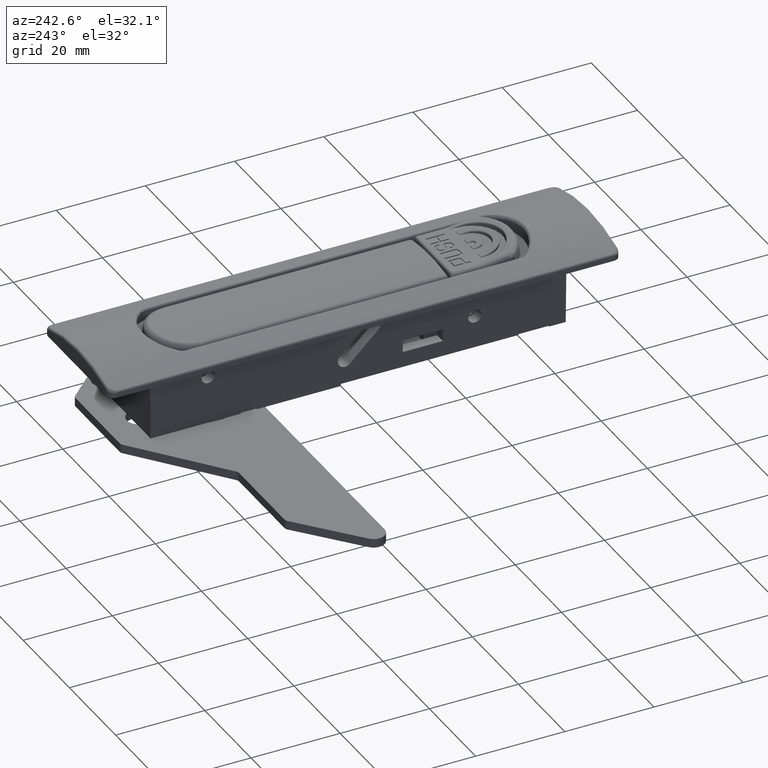
[diagram: clean part render]
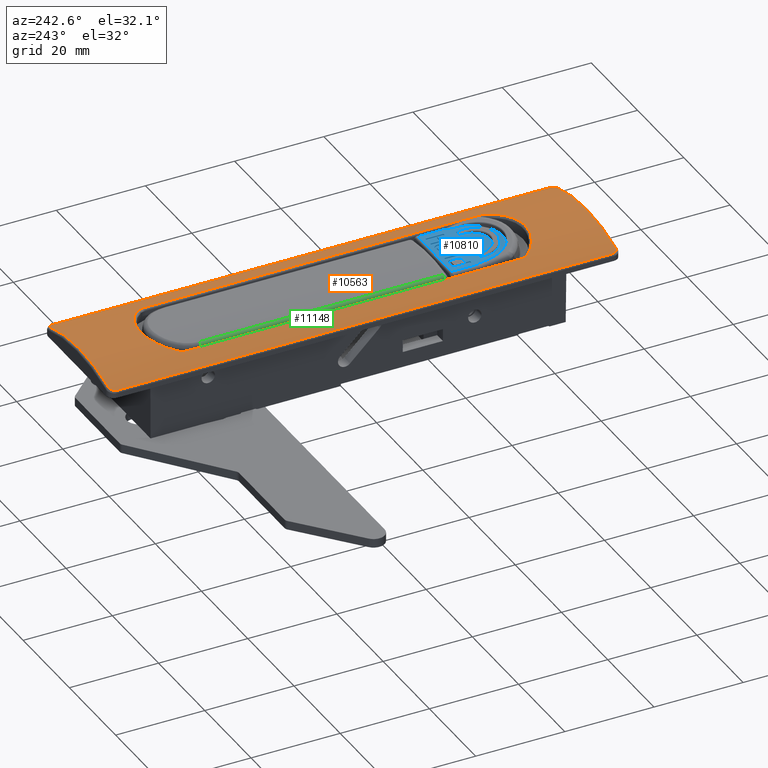
[diagram: same view with three faces highlighted in distinct colors, each labeled with its STEP entity id]
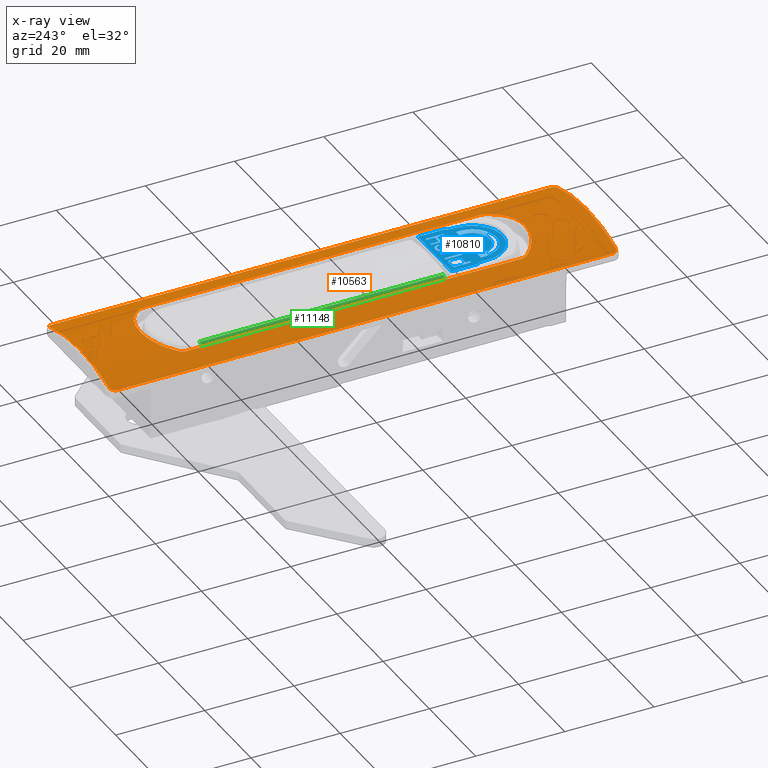
[diagram: x-ray of the same camera — body ghosted, the three highlighted faces saturated]
A machine part, auxiliary view with three faces highlighted in distinct colors.
The next image is the same camera in x-ray (body ghosted, the three faces saturated) — at least one of them is partly hidden behind the body in this view.
Their STEP definitions:

[orange] entity #10563 — the highlighted cylindrical surface (partial cylindrical patch) has radius 40.1979 mm, axis along (0, -1, 0).
#235=B_SPLINE_CURVE_WITH_KNOTS('',3,(#16044,#16045,#16046,#16047,#16048,
#16049,#16050,#16051,#16052,#16053,#16054,#16055,#16056,#16057,#16058,#16059,
#16060,#16061,#16062,#16063,#16064,#16065,#16066,#16067),.UNSPECIFIED.,
 .F.,.F.,(4,2,2,2,2,2,2,2,2,2,2,4),(0.,0.093004094641005,0.189375365493167,
0.290703444806521,0.390850448541937,0.488769898800404,0.583525518953591,
0.675119489411368,0.762674184238563,0.848376822774409,0.931719992775648,
1.),.UNSPECIFIED.);
#236=B_SPLINE_CURVE_WITH_KNOTS('',3,(#16071,#16072,#16073,#16074,#16075,
#16076,#16077,#16078,#16079,#16080,#16081,#16082,#16083,#16084,#16085,#16086,
#16087,#16088,#16089,#16090,#16091,#16092,#16093,#16094,#16095,#16096),
 .UNSPECIFIED.,.F.,.F.,(4,2,2,2,2,2,2,2,2,2,2,2,4),(0.,0.080155960018352,
0.16189440381317,0.245586806144518,0.333025068258781,0.423198580366805,
0.516177791292743,0.612064871776867,0.707700247899875,0.801683069129705,
0.895665890359535,0.988305442447835,1.),.UNSPECIFIED.);
#237=B_SPLINE_CURVE_WITH_KNOTS('',3,(#16100,#16101,#16102,#16103,#16104,
#16105,#16106,#16107,#16108,#16109,#16110,#16111,#16112,#16113,#16114,#16115,
#16116,#16117,#16118,#16119,#16120,#16121,#16122,#16123),.UNSPECIFIED.,
 .F.,.F.,(4,2,2,2,2,2,2,2,2,2,2,4),(0.,0.0917770730021834,0.186807274368729,
0.288456365072638,0.386620970016657,0.482462341571838,0.575219738435854,
0.664958336276976,0.750814549667549,0.834931158641973,0.917465579320986,
1.),.UNSPECIFIED.);
#238=B_SPLINE_CURVE_WITH_KNOTS('',3,(#16126,#16127,#16128,#16129,#16130,
#16131,#16132,#16133,#16134,#16135,#16136,#16137,#16138,#16139,#16140,#16141,
#16142,#16143,#16144,#16145,#16146,#16147,#16148,#16149,#16150,#16151),
 .UNSPECIFIED.,.F.,.F.,(4,2,2,2,2,2,2,2,2,2,2,2,4),(0.,0.0801559606123251,
0.161894405031497,0.245586808022145,0.33302507084702,0.423198583716588,
0.516177795463025,0.612064876826712,0.707700253834175,0.801683072333438,
0.895665890832702,0.988305443025892,1.),.UNSPECIFIED.);
#239=B_SPLINE_CURVE_WITH_KNOTS('',3,(#16154,#16155,#16156,#16157,#16158,
#16159,#16160,#16161,#16162,#16163,#16164,#16165,#16166,#16167),
 .UNSPECIFIED.,.F.,.F.,(4,2,2,2,2,2,4),(0.,0.16740365011754,0.338404627483118,
0.51142882576988,0.683172675158055,0.849910652272437,0.999999999874119),
 .UNSPECIFIED.);
#240=B_SPLINE_CURVE_WITH_KNOTS('',3,(#16169,#16170,#16171,#16172,#16173,
#16174,#16175,#16176,#16177,#16178,#16179,#16180,#16181,#16182,#16183,#16184,
#16185,#16186,#16187),.UNSPECIFIED.,.F.,.F.,(4,3,3,3,3,3,4),(0.,0.250000000000005,
0.468750000000009,0.478026472292498,0.487310363156617,0.497268092589092,
0.500000000000009),.UNSPECIFIED.);
#241=B_SPLINE_CURVE_WITH_KNOTS('',3,(#16189,#16190,#16191,#16192,#16193,
#16194,#16195,#16196,#16197,#16198,#16199,#16200,#16201,#16202,#16203,#16204,
#16205,#16206,#16207,#16208,#16209,#16210,#16211,#16212,#16213,#16214,#16215,
#16216,#16217,#16218,#16219,#16220,#16221,#16222,#16223,#16224,#16225,#16226,
#16227,#16228,#16229,#16230,#16231),.UNSPECIFIED.,.F.,.F.,(4,3,3,3,3,3,
3,3,3,3,3,3,3,3,4),(0.500000000000009,0.509893441496057,0.519295683558011,
0.528672742577028,0.531250000000009,0.562500000000009,0.625000000000009,
0.708164427407822,0.750000000000006,0.751130603935693,0.804847807715674,
0.85986722769956,0.914825997582567,0.969495631610453,0.999999999971815),
 .UNSPECIFIED.);
#242=B_SPLINE_CURVE_WITH_KNOTS('',3,(#16233,#16234,#16235,#16236,#16237,
#16238,#16239,#16240,#16241,#16242,#16243,#16244,#16245,#16246),
 .UNSPECIFIED.,.F.,.F.,(4,2,2,2,2,2,4),(2.02958894962468E-10,0.165897670151577,
0.335826445550605,0.508889990324204,0.681338013686563,0.849553935824285,
0.99999999999999),.UNSPECIFIED.);
#243=B_SPLINE_CURVE_WITH_KNOTS('',3,(#16250,#16251,#16252,#16253,#16254,
#16255,#16256,#16257,#16258,#16259,#16260,#16261,#16262,#16263),
 .UNSPECIFIED.,.F.,.F.,(4,2,2,2,2,2,4),(0.,0.167534310503135,0.338652047462554,
0.511739223526167,0.68350579409857,0.850211178461932,1.),.UNSPECIFIED.);
#244=B_SPLINE_CURVE_WITH_KNOTS('',3,(#16265,#16266,#16267,#16268,#16269,
#16270,#16271,#16272,#16273,#16274,#16275,#16276,#16277),.UNSPECIFIED.,
 .F.,.F.,(4,3,3,3,4),(1.1917756062821E-11,0.250000000000002,0.468750000000002,
0.497268092488159,0.500000000000002),.UNSPECIFIED.);
#245=B_SPLINE_CURVE_WITH_KNOTS('',3,(#16279,#16280,#16281,#16282,#16283,
#16284,#16285,#16286,#16287,#16288,#16289,#16290,#16291,#16292,#16293,#16294,
#16295,#16296,#16297,#16298,#16299,#16300,#16301,#16302,#16303,#16304,#16305,
#16306,#16307,#16308,#16309,#16310,#16311,#16312,#16313,#16314,#16315,#16316,
#16317,#16318,#16319,#16320,#16321),.UNSPECIFIED.,.F.,.F.,(4,3,3,3,3,3,
3,3,3,3,3,3,3,3,4),(0.500000000000002,0.509893441306105,0.519283091659555,
0.528672742013006,0.531250000000002,0.562500000000002,0.625000000000001,
0.708164427992613,0.75,0.751130604328443,0.804847807708747,0.859867227665469,
0.914825997632462,0.969495631718357,1.),.UNSPECIFIED.);
#246=B_SPLINE_CURVE_WITH_KNOTS('',3,(#16323,#16324,#16325,#16326,#16327,
#16328,#16329,#16330,#16331,#16332,#16333,#16334,#16335,#16336),
 .UNSPECIFIED.,.F.,.F.,(4,2,2,2,2,2,4),(1.26589882168754E-10,0.16586946893242,
0.335804549416159,0.508940793408485,0.681492851200162,0.849841600092953,
1.),.UNSPECIFIED.);
#515=CYLINDRICAL_SURFACE('',#11279,40.1978606713009);
#744=FACE_BOUND('',#1479,.T.);
#820=FACE_OUTER_BOUND('',#1478,.T.);
#1478=EDGE_LOOP('',(#7204,#7205,#7206,#7207,#7208,#7209,#7210,#7211));
#1479=EDGE_LOOP('',(#7212,#7213,#7214,#7215,#7216,#7217,#7218,#7219,#7220,
#7221));
#2216=CIRCLE('',#11280,40.1978606713009);
#2217=CIRCLE('',#11281,40.1978606713009);
#2746=LINE('',#16069,#3602);
#2747=LINE('',#16125,#3603);
#2748=LINE('',#16248,#3604);
#2749=LINE('',#16337,#3605);
#3602=VECTOR('',#12635,111.299999999988);
#3603=VECTOR('',#12638,111.299999999988);
#3604=VECTOR('',#12639,75.1180792066697);
#3605=VECTOR('',#12640,75.1180792092931);
#4519=VERTEX_POINT('',#16040);
#4520=VERTEX_POINT('',#16041);
#4521=VERTEX_POINT('',#16043);
#4522=VERTEX_POINT('',#16068);
#4523=VERTEX_POINT('',#16070);
#4524=VERTEX_POINT('',#16097);
#4525=VERTEX_POINT('',#16099);
#4526=VERTEX_POINT('',#16124);
#4527=VERTEX_POINT('',#16152);
#4528=VERTEX_POINT('',#16153);
#4529=VERTEX_POINT('',#16168);
#4530=VERTEX_POINT('',#16188);
#4531=VERTEX_POINT('',#16232);
#4532=VERTEX_POINT('',#16247);
#4533=VERTEX_POINT('',#16249);
#4534=VERTEX_POINT('',#16264);
#4535=VERTEX_POINT('',#16278);
#4536=VERTEX_POINT('',#16322);
#5566=EDGE_CURVE('',#4519,#4520,#2216,.T.);
#5567=EDGE_CURVE('',#4520,#4521,#235,.T.);
#5568=EDGE_CURVE('',#4521,#4522,#2746,.T.);
#5569=EDGE_CURVE('',#4522,#4523,#236,.T.);
#5570=EDGE_CURVE('',#4523,#4524,#2217,.T.);
#5571=EDGE_CURVE('',#4524,#4525,#237,.T.);
#5572=EDGE_CURVE('',#4525,#4526,#2747,.T.);
#5573=EDGE_CURVE('',#4526,#4519,#238,.T.);
#5574=EDGE_CURVE('',#4527,#4528,#239,.T.);
#5575=EDGE_CURVE('',#4528,#4529,#240,.T.);
#5576=EDGE_CURVE('',#4529,#4530,#241,.T.);
#5577=EDGE_CURVE('',#4530,#4531,#242,.T.);
#5578=EDGE_CURVE('',#4531,#4532,#2748,.T.);
#5579=EDGE_CURVE('',#4532,#4533,#243,.T.);
#5580=EDGE_CURVE('',#4533,#4534,#244,.T.);
#5581=EDGE_CURVE('',#4534,#4535,#245,.T.);
#5582=EDGE_CURVE('',#4535,#4536,#246,.T.);
#5583=EDGE_CURVE('',#4536,#4527,#2749,.T.);
#7204=ORIENTED_EDGE('',*,*,#5566,.T.);
#7205=ORIENTED_EDGE('',*,*,#5567,.T.);
#7206=ORIENTED_EDGE('',*,*,#5568,.T.);
#7207=ORIENTED_EDGE('',*,*,#5569,.T.);
#7208=ORIENTED_EDGE('',*,*,#5570,.T.);
#7209=ORIENTED_EDGE('',*,*,#5571,.T.);
#7210=ORIENTED_EDGE('',*,*,#5572,.T.);
#7211=ORIENTED_EDGE('',*,*,#5573,.T.);
#7212=ORIENTED_EDGE('',*,*,#5574,.T.);
#7213=ORIENTED_EDGE('',*,*,#5575,.T.);
#7214=ORIENTED_EDGE('',*,*,#5576,.T.);
#7215=ORIENTED_EDGE('',*,*,#5577,.T.);
#7216=ORIENTED_EDGE('',*,*,#5578,.T.);
#7217=ORIENTED_EDGE('',*,*,#5579,.T.);
#7218=ORIENTED_EDGE('',*,*,#5580,.T.);
#7219=ORIENTED_EDGE('',*,*,#5581,.T.);
#7220=ORIENTED_EDGE('',*,*,#5582,.T.);
#7221=ORIENTED_EDGE('',*,*,#5583,.T.);
#10563=ADVANCED_FACE('',(#820,#744),#515,.T.);
#11279=AXIS2_PLACEMENT_3D('',#16039,#12631,#12632);
#11280=AXIS2_PLACEMENT_3D('',#16042,#12633,#12634);
#11281=AXIS2_PLACEMENT_3D('',#16098,#12636,#12637);
#12631=DIRECTION('center_axis',(1.,0.,0.));
#12632=DIRECTION('ref_axis',(0.,0.,1.));
#12633=DIRECTION('center_axis',(-1.,0.,0.));
#12634=DIRECTION('ref_axis',(0.,0.,-1.));
#12635=DIRECTION('',(-1.,0.,0.));
#12636=DIRECTION('center_axis',(1.,0.,0.));
#12637=DIRECTION('ref_axis',(0.,0.,1.));
#12638=DIRECTION('',(1.,0.,0.));
#12639=DIRECTION('',(-1.,0.,0.));
#12640=DIRECTION('',(1.,0.,0.));
#16039=CARTESIAN_POINT('Origin',(28.4537492108707,53.1051238896642,-40.197860671151));
#16040=CARTESIAN_POINT('',(153.795874386558,40.447684675362,-2.04478431962246));
#16041=CARTESIAN_POINT('',(153.79587438657,65.7625631042904,-2.04478431972991));
#16042=CARTESIAN_POINT('Origin',(153.79587438657,53.1051238896642,-40.197860671151));
#16043=CARTESIAN_POINT('',(152.595874386558,66.9776772688908,-2.46961839444489));
#16044=CARTESIAN_POINT('Ctrl Pts',(153.79587438657,65.7625631042904,-2.04478431972996));
#16045=CARTESIAN_POINT('Ctrl Pts',(153.79587438657,65.8217898211906,-2.06443302543697));
#16046=CARTESIAN_POINT('Ctrl Pts',(153.791364003207,65.8807774599933,-2.08415638879593));
#16047=CARTESIAN_POINT('Ctrl Pts',(153.77341836825,65.9993478018346,-2.12410269638751));
#16048=CARTESIAN_POINT('Ctrl Pts',(153.759666046606,66.0588739890954,-2.14431765771881));
#16049=CARTESIAN_POINT('Ctrl Pts',(153.722563685464,66.1781297046786,-2.18511682401761));
#16050=CARTESIAN_POINT('Ctrl Pts',(153.698756519964,66.2377111796149,-2.20566617458939));
#16051=CARTESIAN_POINT('Ctrl Pts',(153.642670939117,66.3517918273263,-2.2452929761372));
#16052=CARTESIAN_POINT('Ctrl Pts',(153.610495262762,66.4063412205647,-2.26438425427766));
#16053=CARTESIAN_POINT('Ctrl Pts',(153.539200908317,66.5087373924863,-2.30044614092942));
#16054=CARTESIAN_POINT('Ctrl Pts',(153.500253336414,66.5567055555419,-2.31745396493592));
#16055=CARTESIAN_POINT('Ctrl Pts',(153.417182834416,66.6447988143824,-2.34885380366794));
#16056=CARTESIAN_POINT('Ctrl Pts',(153.373268449425,66.6851267892502,-2.36331217019449));
#16057=CARTESIAN_POINT('Ctrl Pts',(153.281697687479,66.7576570667584,-2.38942542119925));
#16058=CARTESIAN_POINT('Ctrl Pts',(153.234215584371,66.790085310966,-2.40115744318305));
#16059=CARTESIAN_POINT('Ctrl Pts',(153.137262250166,66.8464980849798,-2.42163139896464));
#16060=CARTESIAN_POINT('Ctrl Pts',(153.087971481357,66.8707918450244,-2.43048220922182));
#16061=CARTESIAN_POINT('Ctrl Pts',(152.987335976517,66.9118376137103,-2.4454683512472));
#16062=CARTESIAN_POINT('Ctrl Pts',(152.936057043928,66.9287381245899,-2.45165699156728));
#16063=CARTESIAN_POINT('Ctrl Pts',(152.832587270524,66.9549406298364,-2.4612634725512));
#16064=CARTESIAN_POINT('Ctrl Pts',(152.780460634245,66.96443896159,-2.46475281951016));
#16065=CARTESIAN_POINT('Ctrl Pts',(152.68413230645,66.9752195698015,-2.46871444273792));
#16066=CARTESIAN_POINT('Ctrl Pts',(152.640201024697,66.9776772631611,-2.46961839233816));
#16067=CARTESIAN_POINT('Ctrl Pts',(152.595874386558,66.977677268879,-2.46961839444062));
#16068=CARTESIAN_POINT('',(41.2958743865698,66.9776772688908,-2.46961839444488));
#16069=CARTESIAN_POINT('',(28.4537492108707,66.9776772688908,-2.46961839444489));
#16070=CARTESIAN_POINT('',(40.0958743865698,65.7625631042904,-2.04478431972991));
#16071=CARTESIAN_POINT('Ctrl Pts',(41.2958743865698,66.9776772688909,-2.46961839444499));
#16072=CARTESIAN_POINT('Ctrl Pts',(41.2438568618999,66.9776772621801,-2.46961839197745));
#16073=CARTESIAN_POINT('Ctrl Pts',(41.192343734632,66.9742912678043,-2.4683728733735));
#16074=CARTESIAN_POINT('Ctrl Pts',(41.0898600924448,66.960792631478,-2.46341355735143));
#16075=CARTESIAN_POINT('Ctrl Pts',(41.0389205934817,66.9505485853798,-2.45965158289941));
#16076=CARTESIAN_POINT('Ctrl Pts',(40.9380358782977,66.9231653203022,-2.44961632441848));
#16077=CARTESIAN_POINT('Ctrl Pts',(40.8881438229503,66.90586723196,-2.44328526862427));
#16078=CARTESIAN_POINT('Ctrl Pts',(40.7891103692044,66.8638678411805,-2.42795877487621));
#16079=CARTESIAN_POINT('Ctrl Pts',(40.7401029048509,66.8388698675151,-2.41885688357114));
#16080=CARTESIAN_POINT('Ctrl Pts',(40.6445102179111,66.7814804819752,-2.39804276790041));
#16081=CARTESIAN_POINT('Ctrl Pts',(40.5980492312339,66.7488825087337,-2.38625805499404));
#16082=CARTESIAN_POINT('Ctrl Pts',(40.5086572196515,66.6763803808753,-2.36017403659726));
#16083=CARTESIAN_POINT('Ctrl Pts',(40.4658816444735,66.6362808676234,-2.34580826187788));
#16084=CARTESIAN_POINT('Ctrl Pts',(40.3850872251094,66.5490490378403,-2.31473660001834));
#16085=CARTESIAN_POINT('Ctrl Pts',(40.3472597715056,66.5017365945529,-2.2979720421804));
#16086=CARTESIAN_POINT('Ctrl Pts',(40.2788822189159,66.4022640635923,-2.26295802684684));
#16087=CARTESIAN_POINT('Ctrl Pts',(40.248313899495,66.3501179371257,-2.24471310486113));
#16088=CARTESIAN_POINT('Ctrl Pts',(40.1955037645245,66.2429354310177,-2.20747934631055));
#16089=CARTESIAN_POINT('Ctrl Pts',(40.1731276330055,66.1879654798546,-2.18850924766551));
#16090=CARTESIAN_POINT('Ctrl Pts',(40.1365566465559,66.0754363533657,-2.14996277518333));
#16091=CARTESIAN_POINT('Ctrl Pts',(40.1223623176828,66.0178780301839,-2.13038677640678));
#16092=CARTESIAN_POINT('Ctrl Pts',(40.1027699669089,65.9021170476931,-2.09131731056466));
#16093=CARTESIAN_POINT('Ctrl Pts',(40.0972125356443,65.843772906826,-2.0717715161027));
#16094=CARTESIAN_POINT('Ctrl Pts',(40.0959456814812,65.7774550944607,-2.04972722079663));
#16095=CARTESIAN_POINT('Ctrl Pts',(40.0958743865698,65.7700130711816,-2.04725587673385));
#16096=CARTESIAN_POINT('Ctrl Pts',(40.0958743865698,65.7625631042904,-2.04478431972996));
#16097=CARTESIAN_POINT('',(40.0958743865581,40.447684675362,-2.04478431962246));
#16098=CARTESIAN_POINT('Origin',(40.0958743865581,53.1051238896642,-40.197860671151));
#16099=CARTESIAN_POINT('',(41.2958743865698,39.2325705107734,-2.46961839432145));
#16100=CARTESIAN_POINT('Ctrl Pts',(40.0958743865581,40.447684675362,-2.04478431962247));
#16101=CARTESIAN_POINT('Ctrl Pts',(40.0958743865581,40.3893082776051,-2.06415092847335));
#16102=CARTESIAN_POINT('Ctrl Pts',(40.100259940811,40.3311239956505,-2.08360338668661));
#16103=CARTESIAN_POINT('Ctrl Pts',(40.117720927705,40.2141219131835,-2.12301313210881));
#16104=CARTESIAN_POINT('Ctrl Pts',(40.1310987348753,40.1553555196439,-2.14296365043719));
#16105=CARTESIAN_POINT('Ctrl Pts',(40.1675324981783,40.0364693832339,-2.18362006628964));
#16106=CARTESIAN_POINT('Ctrl Pts',(40.1911976672666,39.9765416202364,-2.20428142381459));
#16107=CARTESIAN_POINT('Ctrl Pts',(40.2464520865874,39.8630719005078,-2.24368377398434));
#16108=CARTESIAN_POINT('Ctrl Pts',(40.2777409519731,39.809382315112,-2.26246577144744));
#16109=CARTESIAN_POINT('Ctrl Pts',(40.3469770557721,39.7085135320745,-2.29797116993875));
#16110=CARTESIAN_POINT('Ctrl Pts',(40.3847484567684,39.6612110187155,-2.31473228570781));
#16111=CARTESIAN_POINT('Ctrl Pts',(40.4652983423953,39.574124852106,-2.34575194723576));
#16112=CARTESIAN_POINT('Ctrl Pts',(40.5078759634543,39.5341486819615,-2.36007327622131));
#16113=CARTESIAN_POINT('Ctrl Pts',(40.596704411964,39.4619603875417,-2.38604353248023));
#16114=CARTESIAN_POINT('Ctrl Pts',(40.6427900931072,39.4295382060216,-2.39776397165333));
#16115=CARTESIAN_POINT('Ctrl Pts',(40.7369597270042,39.3727891020313,-2.41834432970432));
#16116=CARTESIAN_POINT('Ctrl Pts',(40.7848705833143,39.3481727065055,-2.42730590640128));
#16117=CARTESIAN_POINT('Ctrl Pts',(40.8827722295395,39.3061498593621,-2.44263840555806));
#16118=CARTESIAN_POINT('Ctrl Pts',(40.9327009172359,39.2886075865406,-2.44905797564466));
#16119=CARTESIAN_POINT('Ctrl Pts',(41.0339400668531,39.2606948439957,-2.45928619213846));
#16120=CARTESIAN_POINT('Ctrl Pts',(41.0852066371514,39.2501957923997,-2.46314156423085));
#16121=CARTESIAN_POINT('Ctrl Pts',(41.1894205473874,39.2361335191716,-2.46830773500137));
#16122=CARTESIAN_POINT('Ctrl Pts',(41.2423676638595,39.2325705142363,-2.46961839304821));
#16123=CARTESIAN_POINT('Ctrl Pts',(41.2958743865698,39.2325705107733,-2.46961839432151));
#16124=CARTESIAN_POINT('',(152.595874386558,39.2325705107616,-2.46961839432579));
#16125=CARTESIAN_POINT('',(28.4537492108707,39.2325705107616,-2.46961839432578));
#16126=CARTESIAN_POINT('Ctrl Pts',(152.595874386558,39.2325705107616,-2.46961839432583));
#16127=CARTESIAN_POINT('Ctrl Pts',(152.647891911644,39.2325705174724,-2.46961839185829));
#16128=CARTESIAN_POINT('Ctrl Pts',(152.699405039309,39.2359565119024,-2.46837287323442));
#16129=CARTESIAN_POINT('Ctrl Pts',(152.801888682264,39.2494551484371,-2.46341355713598));
#16130=CARTESIAN_POINT('Ctrl Pts',(152.852828181596,39.2596991946929,-2.45965158262624));
#16131=CARTESIAN_POINT('Ctrl Pts',(152.953712897485,39.2870824601844,-2.44961632399444));
#16132=CARTESIAN_POINT('Ctrl Pts',(153.003604953166,39.3043805487865,-2.4432852681057));
#16133=CARTESIAN_POINT('Ctrl Pts',(153.102638407538,39.3463799401888,-2.42795877413256));
#16134=CARTESIAN_POINT('Ctrl Pts',(153.151645872181,39.3713779142226,-2.41885688269495));
#16135=CARTESIAN_POINT('Ctrl Pts',(153.247238559638,39.4287673006002,-2.39804276672524));
#16136=CARTESIAN_POINT('Ctrl Pts',(153.293699546539,39.4613652743158,-2.3862580536508));
#16137=CARTESIAN_POINT('Ctrl Pts',(153.383091558486,39.5338674032219,-2.36017403488626));
#16138=CARTESIAN_POINT('Ctrl Pts',(153.425867133801,39.5739669170522,-2.34580825996565));
#16139=CARTESIAN_POINT('Ctrl Pts',(153.506661553324,39.6611987480844,-2.31473659767662));
#16140=CARTESIAN_POINT('Ctrl Pts',(153.544489006944,39.7085111920466,-2.29797203960925));
#16141=CARTESIAN_POINT('Ctrl Pts',(153.612866559409,39.8079837243999,-2.26295802380892));
#16142=CARTESIAN_POINT('Ctrl Pts',(153.64343487869,39.8601298515849,-2.24471310158576));
#16143=CARTESIAN_POINT('Ctrl Pts',(153.696245012203,39.9673123570999,-2.20747934327318));
#16144=CARTESIAN_POINT('Ctrl Pts',(153.7186211427,40.0222823068098,-2.18850924514303));
#16145=CARTESIAN_POINT('Ctrl Pts',(153.755192127567,40.1348114302302,-2.1499627737311));
#16146=CARTESIAN_POINT('Ctrl Pts',(153.769386455879,40.1923697517972,-2.1303867755098));
#16147=CARTESIAN_POINT('Ctrl Pts',(153.788978806323,40.3081307327591,-2.09131731018705));
#16148=CARTESIAN_POINT('Ctrl Pts',(153.794536237556,40.3664748737571,-2.07177151568325));
#16149=CARTESIAN_POINT('Ctrl Pts',(153.795803091653,40.4327926859089,-2.04972722045083));
#16150=CARTESIAN_POINT('Ctrl Pts',(153.795874386558,40.4402347088297,-2.04725587650723));
#16151=CARTESIAN_POINT('Ctrl Pts',(153.795874386558,40.447684675362,-2.04478431962247));
#16152=CARTESIAN_POINT('',(134.504913990861,62.2691098810865,-1.05850243294862));
#16153=CARTESIAN_POINT('',(136.070104419627,61.7115799133999,-0.932138759274406));
#16154=CARTESIAN_POINT('Ctrl Pts',(134.504913990861,62.269109881057,-1.05850243294177));
#16155=CARTESIAN_POINT('Ctrl Pts',(134.600257227036,62.2691098782303,-1.05850243227993));
#16156=CARTESIAN_POINT('Ctrl Pts',(134.695065615922,62.2634659852835,-1.05717977991459));
#16157=CARTESIAN_POINT('Ctrl Pts',(134.884830819064,62.2411936670836,-1.05197499777163));
#16158=CARTESIAN_POINT('Ctrl Pts',(134.979747801311,62.2243316302285,-1.0480385264853));
#16159=CARTESIAN_POINT('Ctrl Pts',(135.167891638615,62.17959240077,-1.03764415716413));
#16160=CARTESIAN_POINT('Ctrl Pts',(135.261086047552,62.1515869711349,-1.0311569867898));
#16161=CARTESIAN_POINT('Ctrl Pts',(135.443038408667,62.0851866922509,-1.0158797793643));
#16162=CARTESIAN_POINT('Ctrl Pts',(135.531824877811,62.0468698447484,-1.00710711339597));
#16163=CARTESIAN_POINT('Ctrl Pts',(135.702249676679,61.9612919361593,-0.987681395973381));
#16164=CARTESIAN_POINT('Ctrl Pts',(135.784021518534,61.9143236354378,-0.977090563085003));
#16165=CARTESIAN_POINT('Ctrl Pts',(135.934395162885,61.8160962168972,-0.955164065722191));
#16166=CARTESIAN_POINT('Ctrl Pts',(136.003496716868,61.765733179921,-0.944008341215364));
#16167=CARTESIAN_POINT('Ctrl Pts',(136.0701043723,61.7115798578487,-0.932138747098441));
#16168=CARTESIAN_POINT('',(140.145869451966,53.1156263715645,-1.37184012594105E-6));
#16169=CARTESIAN_POINT('Ctrl Pts',(136.070104467462,61.7115799691981,-0.932138771504558));
#16170=CARTESIAN_POINT('Ctrl Pts',(137.341910331486,60.6775769618095,-0.705500853272981));
#16171=CARTESIAN_POINT('Ctrl Pts',(138.342569188531,59.3924193580854,-0.465150156777582));
#16172=CARTESIAN_POINT('Ctrl Pts',(139.062780268338,57.8701380389397,-0.283419140465342));
#16173=CARTESIAN_POINT('Ctrl Pts',(139.692964963168,56.5381418846873,-0.124404501192133));
#16174=CARTESIAN_POINT('Ctrl Pts',(140.048151435431,55.1557781642157,-0.0270067633820625));
#16175=CARTESIAN_POINT('Ctrl Pts',(140.128339685116,53.7295267304603,-0.00484979062941981));
#16176=CARTESIAN_POINT('Ctrl Pts',(140.131740206608,53.6690440703124,-0.00391018585764692));
#16177=CARTESIAN_POINT('Ctrl Pts',(140.13464971554,53.6053476348101,-0.00306137664602433));
#16178=CARTESIAN_POINT('Ctrl Pts',(140.137065072566,53.5412298721264,-0.00236572306781646));
#16179=CARTESIAN_POINT('Ctrl Pts',(140.139482361198,53.4770608332462,-0.00166951316218833));
#16180=CARTESIAN_POINT('Ctrl Pts',(140.141404707243,53.4124698330724,-0.00112682815919563));
#16181=CARTESIAN_POINT('Ctrl Pts',(140.142828963817,53.3502566512471,-0.00074743551529366));
#16182=CARTESIAN_POINT('Ctrl Pts',(140.144356595046,53.2835279444132,-0.00034050599059964));
#16183=CARTESIAN_POINT('Ctrl Pts',(140.145311208688,53.2195348034379,-0.000121258744457354));
#16184=CARTESIAN_POINT('Ctrl Pts',(140.145688921706,53.1617319576011,-3.98586248007149E-5));
#16185=CARTESIAN_POINT('Ctrl Pts',(140.145792547437,53.1458737216463,-1.75264664861631E-5));
#16186=CARTESIAN_POINT('Ctrl Pts',(140.145852750918,53.1304814153927,-5.25301269715192E-6));
#16187=CARTESIAN_POINT('Ctrl Pts',(140.145869451966,53.1156263715645,-1.37184012594105E-6));
#16188=CARTESIAN_POINT('',(136.070104420044,44.4986678665842,-0.932138759130688));
#16189=CARTESIAN_POINT('Ctrl Pts',(140.145869451966,53.1156263715645,-1.3718607764071E-6));
#16190=CARTESIAN_POINT('Ctrl Pts',(140.145929933827,53.0618297068396,1.26704928951313E-5));
#16191=CARTESIAN_POINT('Ctrl Pts',(140.145433025615,53.0011500884684,-8.96380130298774E-5));
#16192=CARTESIAN_POINT('Ctrl Pts',(140.1443749228,52.9368712394217,-0.000373394931246792));
#16193=CARTESIAN_POINT('Ctrl Pts',(140.143369353727,52.8757837706736,-0.000643063603457144));
#16194=CARTESIAN_POINT('Ctrl Pts',(140.141856933567,52.8114456407447,-0.00107708082168602));
#16195=CARTESIAN_POINT('Ctrl Pts',(140.139834357279,52.7466755449618,-0.00168145585338782));
#16196=CARTESIAN_POINT('Ctrl Pts',(140.137817198277,52.6820789299393,-0.00228421212200382));
#16197=CARTESIAN_POINT('Ctrl Pts',(140.135292598094,52.6170527074991,-0.00305646125809061));
#16198=CARTESIAN_POINT('Ctrl Pts',(140.132257342574,52.5543924793177,-0.00394935034396685));
#16199=CARTESIAN_POINT('Ctrl Pts',(140.131423111414,52.5371704976838,-0.00419475831461162));
#16200=CARTESIAN_POINT('Ctrl Pts',(140.130550306017,52.5201272402304,-0.00444896377745661));
#16201=CARTESIAN_POINT('Ctrl Pts',(140.12963886292,52.5033207363863,-0.00471026179607771));
#16202=CARTESIAN_POINT('Ctrl Pts',(140.118587348803,52.2995369620355,-0.00787857669124447));
#16203=CARTESIAN_POINT('Ctrl Pts',(140.10189412242,52.0965908526176,-0.0126132412236279));
#16204=CARTESIAN_POINT('Ctrl Pts',(140.079559531737,51.8945045566214,-0.0188356816718691));
#16205=CARTESIAN_POINT('Ctrl Pts',(140.034890350371,51.4903319646289,-0.0312805625683515));
#16206=CARTESIAN_POINT('Ctrl Pts',(139.967656515624,51.0895981615914,-0.0496598285735906));
#16207=CARTESIAN_POINT('Ctrl Pts',(139.877856814219,50.6924530335089,-0.073558569036983));
#16208=CARTESIAN_POINT('Ctrl Pts',(139.75836656224,50.1639994787124,-0.105358970099478));
#16209=CARTESIAN_POINT('Ctrl Pts',(139.598917892301,49.6418953590731,-0.146919196699672));
#16210=CARTESIAN_POINT('Ctrl Pts',(139.399504942583,49.1264996036493,-0.197887754447237));
#16211=CARTESIAN_POINT('Ctrl Pts',(139.299190959865,48.8672315823112,-0.223527308088496));
#16212=CARTESIAN_POINT('Ctrl Pts',(139.188764649044,48.6096612877907,-0.25155520986491));
#16213=CARTESIAN_POINT('Ctrl Pts',(139.068230172457,48.3538417863384,-0.281993510519637));
#16214=CARTESIAN_POINT('Ctrl Pts',(139.064972735181,48.3469282790706,-0.282816103838756));
#16215=CARTESIAN_POINT('Ctrl Pts',(139.061708711595,48.340018654212,-0.283640163614702));
#16216=CARTESIAN_POINT('Ctrl Pts',(139.058438101426,48.3331129213102,-0.284465686297478));
#16217=CARTESIAN_POINT('Ctrl Pts',(138.903045016896,48.0050080476012,-0.323687883192364));
#16218=CARTESIAN_POINT('Ctrl Pts',(138.734790538237,47.6881035632108,-0.365638150017069));
#16219=CARTESIAN_POINT('Ctrl Pts',(138.553524428631,47.3822864908835,-0.409585375942067));
#16220=CARTESIAN_POINT('Ctrl Pts',(138.367864053342,47.0690557797406,-0.454597973585791));
#16221=CARTESIAN_POINT('Ctrl Pts',(138.168637990381,46.767559162948,-0.50169319532485));
#16222=CARTESIAN_POINT('Ctrl Pts',(137.955940209663,46.4779562271209,-0.550072968531671));
#16223=CARTESIAN_POINT('Ctrl Pts',(137.743476894191,46.1886725321596,-0.598399410785052));
#16224=CARTESIAN_POINT('Ctrl Pts',(137.51757144982,45.9112560032297,-0.648006896308801));
#16225=CARTESIAN_POINT('Ctrl Pts',(137.278317039543,45.6458377004696,-0.698127434998383));
#16226=CARTESIAN_POINT('Ctrl Pts',(137.040321336997,45.381815752615,-0.747984291570552));
#16227=CARTESIAN_POINT('Ctrl Pts',(136.789116748375,45.1296657176601,-0.798348268110098));
#16228=CARTESIAN_POINT('Ctrl Pts',(136.524795272767,44.8894943622358,-0.848500993229719));
#16229=CARTESIAN_POINT('Ctrl Pts',(136.377310113938,44.7554844017525,-0.876485032789865));
#16230=CARTESIAN_POINT('Ctrl Pts',(136.225741179877,44.6252034974326,-0.904404050671617));
#16231=CARTESIAN_POINT('Ctrl Pts',(136.070104467729,44.4986678106712,-0.932138771385972));
#16232=CARTESIAN_POINT('',(134.504913990802,43.941137898578,-1.05850243286994));
#16233=CARTESIAN_POINT('Ctrl Pts',(136.070104372741,44.49866792215,-0.932138746951523));
#16234=CARTESIAN_POINT('Ctrl Pts',(135.996504000092,44.4388293846574,-0.945254454822249));
#16235=CARTESIAN_POINT('Ctrl Pts',(135.919855597126,44.3836153008881,-0.957499157037453));
#16236=CARTESIAN_POINT('Ctrl Pts',(135.759502101168,44.2813213123396,-0.980373197001515));
#16237=CARTESIAN_POINT('Ctrl Pts',(135.675670180767,44.2344712150366,-0.990956113104));
#16238=CARTESIAN_POINT('Ctrl Pts',(135.501984097653,44.1500134345939,-1.01015967710777));
#16239=CARTESIAN_POINT('Ctrl Pts',(135.412046634431,44.112591722026,-1.01874057194602));
#16240=CARTESIAN_POINT('Ctrl Pts',(135.228834130001,44.0485388876377,-1.03349744464019));
#16241=CARTESIAN_POINT('Ctrl Pts',(135.135571255978,44.0218695288574,-1.03968188952612));
#16242=CARTESIAN_POINT('Ctrl Pts',(134.948614335918,43.9800346701623,-1.04940988322139));
#16243=CARTESIAN_POINT('Ctrl Pts',(134.854986258105,43.96460277301,-1.05301450619389));
#16244=CARTESIAN_POINT('Ctrl Pts',(134.675901336506,43.9456997995524,-1.0574335288091));
#16245=CARTESIAN_POINT('Ctrl Pts',(134.590625665673,43.9411379011125,-1.05850243227656));
#16246=CARTESIAN_POINT('Ctrl Pts',(134.504913990802,43.941137898578,-1.05850243286998));
#16247=CARTESIAN_POINT('',(59.3868347841323,43.941137898578,-1.05850243286994));
#16248=CARTESIAN_POINT('',(28.4537492108707,43.941137898578,-1.05850243286994));
#16249=CARTESIAN_POINT('',(57.8216443556009,44.4986678659427,-0.932138759271299));
#16250=CARTESIAN_POINT('Ctrl Pts',(59.3868347841323,43.941137898578,-1.05850243286998));
#16251=CARTESIAN_POINT('Ctrl Pts',(59.2913295549705,43.9411379012853,-1.0585024322361));
#16252=CARTESIAN_POINT('Ctrl Pts',(59.1963796541387,43.9467991780835,-1.05717570337527));
#16253=CARTESIAN_POINT('Ctrl Pts',(59.0063744394031,43.9691311588345,-1.0519570073323));
#16254=CARTESIAN_POINT('Ctrl Pts',(58.9113595515277,43.9860349391673,-1.0480108274504));
#16255=CARTESIAN_POINT('Ctrl Pts',(58.7230830652404,44.0308654950996,-1.03759544247686));
#16256=CARTESIAN_POINT('Ctrl Pts',(58.6298533959229,44.0589171828288,-1.03109773162095));
#16257=CARTESIAN_POINT('Ctrl Pts',(58.447881759052,44.1253996087053,-1.01580216269241));
#16258=CARTESIAN_POINT('Ctrl Pts',(58.3591101927594,44.1637499487046,-1.00702220805821));
#16259=CARTESIAN_POINT('Ctrl Pts',(58.1887679810383,44.2493626116966,-0.987589512505827));
#16260=CARTESIAN_POINT('Ctrl Pts',(58.1070616447276,44.2963295436125,-0.976999535509116));
#16261=CARTESIAN_POINT('Ctrl Pts',(57.95696048621,44.3944384739781,-0.955100504026316));
#16262=CARTESIAN_POINT('Ctrl Pts',(57.888056256368,44.4446737904098,-0.943973448940935));
#16263=CARTESIAN_POINT('Ctrl Pts',(57.8216444031168,44.4986679213443,-0.93213874712812));
#16264=CARTESIAN_POINT('',(53.7458793216891,53.0946214041886,-1.37184105852839E-6));
#16265=CARTESIAN_POINT('Ctrl Pts',(57.8216443079375,44.4986678100049,-0.932138771532043));
#16266=CARTESIAN_POINT('Ctrl Pts',(56.54983844416,45.5326708167575,-0.705500853436406));
#16267=CARTESIAN_POINT('Ctrl Pts',(55.5491795870198,46.8178284199326,-0.465150157013065));
#16268=CARTESIAN_POINT('Ctrl Pts',(54.8289685069084,48.340109738345,-0.283419140709311));
#16269=CARTESIAN_POINT('Ctrl Pts',(54.1987838117808,49.6721058920193,-0.124404501435948));
#16270=CARTESIAN_POINT('Ctrl Pts',(53.8435973390786,51.0544696120236,-0.027006763551964));
#16271=CARTESIAN_POINT('Ctrl Pts',(53.763409088802,52.4807210454335,-0.00484979068278157));
#16272=CARTESIAN_POINT('Ctrl Pts',(53.7529550730861,52.6666591953277,-0.00196122107573733));
#16273=CARTESIAN_POINT('Ctrl Pts',(53.7471415901337,52.8829733688476,-0.000272981691949228));
#16274=CARTESIAN_POINT('Ctrl Pts',(53.7460598519817,53.0485158165233,-3.98586321281869E-5));
#16275=CARTESIAN_POINT('Ctrl Pts',(53.7459562262366,53.0643740530628,-1.75264709370622E-5));
#16276=CARTESIAN_POINT('Ctrl Pts',(53.7458960227443,53.0797663598624,-5.25301508109661E-6));
#16277=CARTESIAN_POINT('Ctrl Pts',(53.7458793216891,53.0946214041886,-1.37184105852839E-6));
#16278=CARTESIAN_POINT('',(57.8216443485571,61.711579909927,-0.932138758513193));
#16279=CARTESIAN_POINT('Ctrl Pts',(53.7458793216891,53.0946214041886,-1.3718617062532E-6));
#16280=CARTESIAN_POINT('Ctrl Pts',(53.7458188398064,53.1484180676969,1.26704975156242E-5));
#16281=CARTESIAN_POINT('Ctrl Pts',(53.7463157479714,53.209097684995,-8.96379969463918E-5));
#16282=CARTESIAN_POINT('Ctrl Pts',(53.7473738507158,53.2733765330516,-0.000373394898530554));
#16283=CARTESIAN_POINT('Ctrl Pts',(53.7483780730587,53.3343821922252,-0.000642702413359594));
#16284=CARTESIAN_POINT('Ctrl Pts',(53.7498877898248,53.3986298119306,-0.00107590643844127));
#16285=CARTESIAN_POINT('Ctrl Pts',(53.7519062927856,53.4633120059156,-0.00167902850645204));
#16286=CARTESIAN_POINT('Ctrl Pts',(53.7539247957463,53.5279941999006,-0.00228215057446288));
#16287=CARTESIAN_POINT('Ctrl Pts',(53.7564520991676,53.5931109202354,-0.00305526213745093));
#16288=CARTESIAN_POINT('Ctrl Pts',(53.7594914302813,53.6558552877295,-0.00394935016273883));
#16289=CARTESIAN_POINT('Ctrl Pts',(53.7603256615991,53.6730772732322,-0.00419475818300699));
#16290=CARTESIAN_POINT('Ctrl Pts',(53.7611984671697,53.6901205344673,-0.00444896369941304));
#16291=CARTESIAN_POINT('Ctrl Pts',(53.7621099104588,53.7069270419639,-0.00471026177428632));
#16292=CARTESIAN_POINT('Ctrl Pts',(53.7731614244816,53.9107108160042,-0.00787857665816291));
#16293=CARTESIAN_POINT('Ctrl Pts',(53.789854650767,54.113656925134,-0.0126132411755891));
#16294=CARTESIAN_POINT('Ctrl Pts',(53.8121892413505,54.3157432208648,-0.0188356816061409));
#16295=CARTESIAN_POINT('Ctrl Pts',(53.8568584225177,54.7199158123264,-0.0312805624672443));
#16296=CARTESIAN_POINT('Ctrl Pts',(53.9240922570579,55.120649614923,-0.0496598284261758));
#16297=CARTESIAN_POINT('Ctrl Pts',(54.0138919582463,55.5177947426549,-0.0735585688394718));
#16298=CARTESIAN_POINT('Ctrl Pts',(54.1333822107781,56.046248300701,-0.105358970058923));
#16299=CARTESIAN_POINT('Ctrl Pts',(54.292830881815,56.5683524236606,-0.146919196946444));
#16300=CARTESIAN_POINT('Ctrl Pts',(54.4922438331769,57.0837481824673,-0.197887755119008));
#16301=CARTESIAN_POINT('Ctrl Pts',(54.5925578146144,57.3430162000598,-0.223527308435366));
#16302=CARTESIAN_POINT('Ctrl Pts',(54.7029841238678,57.6005864909217,-0.251555209821574));
#16303=CARTESIAN_POINT('Ctrl Pts',(54.8235185986019,57.8564059888048,-0.281993510021517));
#16304=CARTESIAN_POINT('Ctrl Pts',(54.8267760370047,57.8633194984744,-0.282816103625601));
#16305=CARTESIAN_POINT('Ctrl Pts',(54.8300400617217,57.8702291257322,-0.283640163687526));
#16306=CARTESIAN_POINT('Ctrl Pts',(54.8333106730271,57.8771348610303,-0.284465686657292));
#16307=CARTESIAN_POINT('Ctrl Pts',(54.9887037564002,58.2052397321756,-0.32368788327057));
#16308=CARTESIAN_POINT('Ctrl Pts',(55.1569582336536,58.5221442141152,-0.365638149761773));
#16309=CARTESIAN_POINT('Ctrl Pts',(55.3382243416892,58.8279612842003,-0.409585375331362));
#16310=CARTESIAN_POINT('Ctrl Pts',(55.5238847166594,59.1411919952227,-0.454597972923747));
#16311=CARTESIAN_POINT('Ctrl Pts',(55.7231107792868,59.4426886119184,-0.501693194613109));
#16312=CARTESIAN_POINT('Ctrl Pts',(55.935808559658,59.7322915476738,-0.550072967773971));
#16313=CARTESIAN_POINT('Ctrl Pts',(56.1482718752128,60.0215752431484,-0.598399410079153));
#16314=CARTESIAN_POINT('Ctrl Pts',(56.3741773197095,60.2989917725686,-0.648006895663609));
#16315=CARTESIAN_POINT('Ctrl Pts',(56.613431730153,60.5644100757971,-0.698127434420304));
#16316=CARTESIAN_POINT('Ctrl Pts',(56.8514274327541,60.8284320239941,-0.747984291035947));
#16317=CARTESIAN_POINT('Ctrl Pts',(57.1026320214611,61.0805820592806,-0.79834826762481));
#16318=CARTESIAN_POINT('Ctrl Pts',(57.366953497181,61.3207534150267,-0.848500992798397));
#16319=CARTESIAN_POINT('Ctrl Pts',(57.5144386555312,61.454763375197,-0.876485032285828));
#16320=CARTESIAN_POINT('Ctrl Pts',(57.6660075890933,61.5850442792283,-0.904404050096807));
#16321=CARTESIAN_POINT('Ctrl Pts',(57.8216443007214,61.7115799657257,-0.932138770743415));
#16322=CARTESIAN_POINT('',(59.3868347815679,62.269109881057,-1.05850243294172));
#16323=CARTESIAN_POINT('Ctrl Pts',(57.8216443958855,61.7115798543754,-0.932138746337148));
#16324=CARTESIAN_POINT('Ctrl Pts',(57.895163123871,61.7713520132694,-0.94523990501244));
#16325=CARTESIAN_POINT('Ctrl Pts',(57.9717392051162,61.8265212877462,-0.957474483539336));
#16326=CARTESIAN_POINT('Ctrl Pts',(58.1319823678566,61.9287670314739,-0.980337351436094));
#16327=CARTESIAN_POINT('Ctrl Pts',(58.2157778582644,61.9756124456973,-0.990918976691342));
#16328=CARTESIAN_POINT('Ctrl Pts',(58.389447351309,62.0600948306606,-1.01012777243067));
#16329=CARTESIAN_POINT('Ctrl Pts',(58.4794068505438,62.0975421991323,-1.01871441720603));
#16330=CARTESIAN_POINT('Ctrl Pts',(58.6627089604306,62.1616513259297,-1.03348410618514));
#16331=CARTESIAN_POINT('Ctrl Pts',(58.7560399704984,62.1883493958303,-1.03967518426524));
#16332=CARTESIAN_POINT('Ctrl Pts',(58.9431807326141,62.2302298748623,-1.0494137775101));
#16333=CARTESIAN_POINT('Ctrl Pts',(59.036924224831,62.2456771116043,-1.0530220025968));
#16334=CARTESIAN_POINT('Ctrl Pts',(59.2160324855997,62.264558514692,-1.05743599963285));
#16335=CARTESIAN_POINT('Ctrl Pts',(59.3012085802544,62.2691098786177,-1.05850243237064));
#16336=CARTESIAN_POINT('Ctrl Pts',(59.3868347815607,62.269109881057,-1.05850243294177));
#16337=CARTESIAN_POINT('',(28.4537492108707,62.2691098810865,-1.05850243294861));

[blue] entity #10810 — the highlighted planar face has unit normal (0, 0, -1).
#265=B_SPLINE_CURVE_WITH_KNOTS('',3,(#17995,#17996,#17997,#17998,#17999,
#18000,#18001,#18002,#18003,#18004,#18005,#18006,#18007,#18008,#18009,#18010,
#18011,#18012,#18013),.UNSPECIFIED.,.F.,.F.,(4,3,3,3,3,3,4),(0.,0.0163929796169478,
0.31888029741061,0.577098915213299,0.621367615204272,0.830981679821201,
1.),.UNSPECIFIED.);
#266=B_SPLINE_CURVE_WITH_KNOTS('',3,(#18025,#18026,#18027,#18028,#18029,
#18030,#18031,#18032,#18033,#18034,#18035,#18036,#18037,#18038,#18039,#18040,
#18041,#18042,#18043),.UNSPECIFIED.,.F.,.F.,(4,3,3,3,3,3,4),(0.,0.209614064584182,
0.378632384795745,0.636851002614498,0.962364247184272,0.983607020383053,
1.),.UNSPECIFIED.);
#267=B_SPLINE_CURVE_WITH_KNOTS('',3,(#18051,#18052,#18053,#18054,#18055,
#18056,#18057,#18058,#18059,#18060,#18061,#18062),.UNSPECIFIED.,.F.,.F.,
(4,2,2,2,2,4),(-0.0132795687340833,-0.0116411545819521,-0.0098876606253847,
-0.00682502041146071,-0.00375512506132481,-9.99947615661079E-7),
 .UNSPECIFIED.);
#268=B_SPLINE_CURVE_WITH_KNOTS('',3,(#18066,#18067,#18068,#18069,#18070,
#18071,#18072,#18073,#18074,#18075,#18076,#18077),.UNSPECIFIED.,.F.,.F.,
(4,2,2,2,2,4),(-0.017049858968754,-0.0122539484944881,-0.0083099199053832,
-0.00437489498532057,-0.00211303488227798,0.),.UNSPECIFIED.);
#269=B_SPLINE_CURVE_WITH_KNOTS('',3,(#18089,#18090,#18091,#18092,#18093,
#18094,#18095,#18096,#18097,#18098,#18099,#18100),.UNSPECIFIED.,.F.,.F.,
(4,2,2,2,2,4),(-0.0132795687274901,-0.0116411545762287,-0.00988766062061371,
-0.00682502040844088,-0.00375512505997875,-9.99947616549257E-7),
 .UNSPECIFIED.);
#270=B_SPLINE_CURVE_WITH_KNOTS('',3,(#18104,#18105,#18106,#18107,#18108,
#18109,#18110,#18111,#18112,#18113,#18114,#18115),.UNSPECIFIED.,.F.,.F.,
(4,2,2,2,2,4),(-0.0170498589680878,-0.0122539484940901,-0.00830991990514709,
-0.00437489498525751,-0.00211303488226681,0.),.UNSPECIFIED.);
#271=B_SPLINE_CURVE_WITH_KNOTS('',3,(#18123,#18124,#18125,#18126),
 .UNSPECIFIED.,.F.,.F.,(4,4),(0.,1.),.UNSPECIFIED.);
#272=B_SPLINE_CURVE_WITH_KNOTS('',3,(#18128,#18129,#18130,#18131,#18132,
#18133,#18134,#18135,#18136,#18137),.UNSPECIFIED.,.F.,.F.,(4,2,2,2,4),(0.,
0.263982102908279,0.527964205816554,0.791946308724829,1.),.UNSPECIFIED.);
#273=B_SPLINE_CURVE_WITH_KNOTS('',3,(#18143,#18144,#18145,#18146,#18147,
#18148,#18149,#18150),.UNSPECIFIED.,.F.,.F.,(4,2,2,4),(0.,0.307332293291746,
0.65366614664588,1.),.UNSPECIFIED.);
#274=B_SPLINE_CURVE_WITH_KNOTS('',3,(#18152,#18153,#18154,#18155),
 .UNSPECIFIED.,.F.,.F.,(4,4),(0.,1.),.UNSPECIFIED.);
#275=B_SPLINE_CURVE_WITH_KNOTS('',3,(#18157,#18158,#18159,#18160,#18161,
#18162),.UNSPECIFIED.,.F.,.F.,(4,2,4),(0.,0.504098360655734,1.),
 .UNSPECIFIED.);
#276=B_SPLINE_CURVE_WITH_KNOTS('',3,(#18166,#18167,#18168,#18169,#18170,
#18171),.UNSPECIFIED.,.F.,.F.,(4,2,4),(0.,0.500000000000002,1.),
 .UNSPECIFIED.);
#277=B_SPLINE_CURVE_WITH_KNOTS('',3,(#18173,#18174,#18175,#18176,#18177,
#18178,#18179,#18180),.UNSPECIFIED.,.F.,.F.,(4,2,2,4),(0.,0.356115107913669,
0.678057553956829,1.),.UNSPECIFIED.);
#278=B_SPLINE_CURVE_WITH_KNOTS('',3,(#18182,#18183,#18184,#18185,#18186,
#18187,#18188,#18189),.UNSPECIFIED.,.F.,.F.,(4,2,2,4),(0.,0.353733170134634,
0.676866585067317,1.),.UNSPECIFIED.);
#279=B_SPLINE_CURVE_WITH_KNOTS('',3,(#18191,#18192,#18193,#18194),
 .UNSPECIFIED.,.F.,.F.,(4,4),(0.,1.),.UNSPECIFIED.);
#280=B_SPLINE_CURVE_WITH_KNOTS('',3,(#18196,#18197,#18198,#18199),
 .UNSPECIFIED.,.F.,.F.,(4,4),(0.,1.),.UNSPECIFIED.);
#281=B_SPLINE_CURVE_WITH_KNOTS('',3,(#18205,#18206,#18207,#18208,#18209,
#18210),.UNSPECIFIED.,.F.,.F.,(4,2,4),(0.,0.510603588907018,1.),
 .UNSPECIFIED.);
#282=B_SPLINE_CURVE_WITH_KNOTS('',3,(#18212,#18213,#18214,#18215,#18216,
#18217,#18218,#18219,#18220,#18221,#18222,#18223),.UNSPECIFIED.,.F.,.F.,
(4,2,2,2,2,4),(0.,0.257272745847084,0.435253748417189,0.61284352863313,
0.792320038538309,1.),.UNSPECIFIED.);
#283=B_SPLINE_CURVE_WITH_KNOTS('',3,(#18224,#18225,#18226,#18227,#18228,
#18229),.UNSPECIFIED.,.F.,.F.,(4,2,4),(0.,0.497607655502375,1.),
 .UNSPECIFIED.);
#284=B_SPLINE_CURVE_WITH_KNOTS('',3,(#18296,#18297,#18298,#18299,#18300,
#18301,#18302,#18303,#18304,#18305,#18306,#18307),.UNSPECIFIED.,.F.,.F.,
(4,2,2,2,2,4),(-0.0132795687315264,-0.0116411545797075,-0.00988766062347705,
-0.006825020410259,-0.00375512506076817,-9.99947615924757E-7),
 .UNSPECIFIED.);
#285=B_SPLINE_CURVE_WITH_KNOTS('',3,(#18311,#18312,#18313,#18314,#18315,
#18316,#18317,#18318,#18319,#18320,#18321,#18322),.UNSPECIFIED.,.F.,.F.,
(4,2,2,2,2,4),(-0.0170498589678737,-0.0122539484941145,-0.00830991990515119,
-0.00437489498525854,-0.0021130348822691,0.),.UNSPECIFIED.);
#286=B_SPLINE_CURVE_WITH_KNOTS('',3,(#18334,#18335,#18336,#18337,#18338,
#18339,#18340,#18341,#18342,#18343,#18344,#18345),.UNSPECIFIED.,.F.,.F.,
(4,2,2,2,2,4),(-0.013279568728554,-0.0116411545771722,-0.00988766062141119,
-0.00682502040894025,-0.00375512506020098,-9.99947616887528E-7),
 .UNSPECIFIED.);
#287=B_SPLINE_CURVE_WITH_KNOTS('',3,(#18349,#18350,#18351,#18352,#18353,
#18354,#18355,#18356,#18357,#18358,#18359,#18360),.UNSPECIFIED.,.F.,.F.,
(4,2,2,2,2,4),(-0.0170498589687209,-0.0122539484941355,-0.00830991990516474,
-0.00437489498526663,-0.00211303488227171,0.),.UNSPECIFIED.);
#435=ELLIPSE('',#11698,1.44897242925907,0.2);
#436=ELLIPSE('',#11700,1.44897242925907,0.2);
#437=ELLIPSE('',#11701,1.44897242925907,0.2);
#438=ELLIPSE('',#11702,1.44897242925907,0.2);
#439=ELLIPSE('',#11704,1.44897242925907,0.2);
#440=ELLIPSE('',#11705,1.44897242925907,0.2);
#441=ELLIPSE('',#11707,22.5011252329767,3.52159323463958);
#442=ELLIPSE('',#11708,16.8013320544606,2.67989329343433);
#443=ELLIPSE('',#11709,1518.02647784052,29.9003325391636);
#444=ELLIPSE('',#11716,1.44897242925907,0.2);
#445=ELLIPSE('',#11717,1.44897242925907,0.2);
#446=ELLIPSE('',#11719,1.44897242925907,0.2);
#447=ELLIPSE('',#11720,1.44897242925907,0.2);
#779=FACE_BOUND('',#1761,.T.);
#780=FACE_BOUND('',#1762,.T.);
#781=FACE_BOUND('',#1763,.T.);
#782=FACE_BOUND('',#1764,.T.);
#783=FACE_BOUND('',#1765,.T.);
#784=FACE_BOUND('',#1766,.T.);
#1067=FACE_OUTER_BOUND('',#1760,.T.);
#1760=EDGE_LOOP('',(#8414,#8415,#8416,#8417,#8418,#8419,#8420,#8421,#8422,
#8423,#8424,#8425));
#1761=EDGE_LOOP('',(#8426,#8427,#8428,#8429,#8430,#8431,#8432,#8433,#8434,
#8435,#8436,#8437,#8438,#8439,#8440,#8441));
#1762=EDGE_LOOP('',(#8442,#8443,#8444,#8445,#8446,#8447,#8448,#8449,#8450,
#8451,#8452,#8453,#8454,#8455,#8456,#8457,#8458,#8459));
#1763=EDGE_LOOP('',(#8460,#8461,#8462,#8463,#8464,#8465,#8466,#8467,#8468,
#8469));
#1764=EDGE_LOOP('',(#8470,#8471,#8472,#8473,#8474,#8475,#8476,#8477,#8478,
#8479,#8480,#8481));
#1765=EDGE_LOOP('',(#8482,#8483,#8484,#8485,#8486,#8487,#8488,#8489,#8490,
#8491,#8492,#8493));
#1766=EDGE_LOOP('',(#8494,#8495,#8496,#8497,#8498,#8499,#8500,#8501,#8502,
#8503,#8504,#8505,#8506,#8507,#8508,#8509));
#2364=CIRCLE('',#11692,0.1);
#2366=CIRCLE('',#11695,0.1);
#2368=CIRCLE('',#11699,6.8);
#2369=CIRCLE('',#11703,0.600000000000001);
#2370=CIRCLE('',#11706,2.);
#2371=CIRCLE('',#11710,0.6);
#2372=CIRCLE('',#11711,0.6);
#2373=CIRCLE('',#11712,0.6);
#2374=CIRCLE('',#11713,0.2);
#2375=CIRCLE('',#11714,0.6);
#2376=CIRCLE('',#11715,0.6);
#2377=CIRCLE('',#11718,4.);
#2378=CIRCLE('',#11721,5.4);
#3075=LINE('',#17987,#3931);
#3076=LINE('',#17989,#3932);
#3077=LINE('',#17991,#3933);
#3078=LINE('',#17993,#3934);
#3079=LINE('',#18017,#3935);
#3080=LINE('',#18021,#3936);
#3081=LINE('',#18044,#3937);
#3082=LINE('',#18047,#3938);
#3083=LINE('',#18064,#3939);
#3084=LINE('',#18081,#3940);
#3085=LINE('',#18085,#3941);
#3086=LINE('',#18102,#3942);
#3087=LINE('',#18119,#3943);
#3088=LINE('',#18139,#3944);
#3089=LINE('',#18201,#3945);
#3090=LINE('',#18232,#3946);
#3091=LINE('',#18234,#3947);
#3092=LINE('',#18236,#3948);
#3093=LINE('',#18240,#3949);
#3094=LINE('',#18244,#3950);
#3095=LINE('',#18248,#3951);
#3096=LINE('',#18251,#3952);
#3097=LINE('',#18252,#3953);
#3098=LINE('',#18254,#3954);
#3099=LINE('',#18256,#3955);
#3100=LINE('',#18258,#3956);
#3101=LINE('',#18262,#3957);
#3102=LINE('',#18266,#3958);
#3103=LINE('',#18267,#3959);
#3104=LINE('',#18270,#3960);
#3105=LINE('',#18272,#3961);
#3106=LINE('',#18274,#3962);
#3107=LINE('',#18276,#3963);
#3108=LINE('',#18278,#3964);
#3109=LINE('',#18280,#3965);
#3110=LINE('',#18282,#3966);
#3111=LINE('',#18284,#3967);
#3112=LINE('',#18286,#3968);
#3113=LINE('',#18288,#3969);
#3114=LINE('',#18290,#3970);
#3115=LINE('',#18291,#3971);
#3116=LINE('',#18309,#3972);
#3117=LINE('',#18326,#3973);
#3118=LINE('',#18330,#3974);
#3119=LINE('',#18347,#3975);
#3120=LINE('',#18364,#3976);
#3121=LINE('',#18367,#3977);
#3931=VECTOR('',#13798,6.21453931412601);
#3932=VECTOR('',#13799,14.6);
#3933=VECTOR('',#13800,6.21453931412601);
#3934=VECTOR('',#13801,0.300000000000002);
#3935=VECTOR('',#13804,0.253730509903995);
#3936=VECTOR('',#13807,0.253730509916998);
#3937=VECTOR('',#13810,0.299999999999896);
#3938=VECTOR('',#13811,0.253730509914991);
#3939=VECTOR('',#13814,1.14535785622073);
#3940=VECTOR('',#13817,0.253730509919983);
#3941=VECTOR('',#13820,0.253730509914991);
#3942=VECTOR('',#13823,1.14535785622091);
#3943=VECTOR('',#13826,0.253730509919983);
#3944=VECTOR('',#13829,0.399554843418187);
#3945=VECTOR('',#13834,0.4055035557056);
#3946=VECTOR('',#13837,0.800000000010002);
#3947=VECTOR('',#13838,0.499999999999998);
#3948=VECTOR('',#13839,3.40000000001101);
#3949=VECTOR('',#13842,1.4301369863013);
#3950=VECTOR('',#13845,1.8);
#3951=VECTOR('',#13848,1.3301369863014);
#3952=VECTOR('',#13851,3.39999999999998);
#3953=VECTOR('',#13852,1.30644242506441);
#3954=VECTOR('',#13853,3.39999999999998);
#3955=VECTOR('',#13854,0.499999999999998);
#3956=VECTOR('',#13855,3.39999999999998);
#3957=VECTOR('',#13858,1.30644242506441);
#3958=VECTOR('',#13861,3.39999999999998);
#3959=VECTOR('',#13862,0.499999999999998);
#3960=VECTOR('',#13863,1.642363775902);
#3961=VECTOR('',#13864,0.42153804421539);
#3962=VECTOR('',#13865,3.99999999999999);
#3963=VECTOR('',#13866,0.421538044215293);
#3964=VECTOR('',#13867,1.884881043745);
#3965=VECTOR('',#13868,1.65278719652791);
#3966=VECTOR('',#13869,1.884881043745);
#3967=VECTOR('',#13870,0.421538044215399);
#3968=VECTOR('',#13871,3.99999999999999);
#3969=VECTOR('',#13872,0.421538044215399);
#3970=VECTOR('',#13873,1.642363775902);
#3971=VECTOR('',#13874,1.65278719652791);
#3972=VECTOR('',#13877,1.14535785622093);
#3973=VECTOR('',#13880,0.253730509915986);
#3974=VECTOR('',#13883,0.253730509915986);
#3975=VECTOR('',#13886,1.14535785622084);
#3976=VECTOR('',#13889,0.253730509914991);
#3977=VECTOR('',#13892,0.253730509916998);
#4832=VERTEX_POINT('',#17968);
#4833=VERTEX_POINT('',#17970);
#4836=VERTEX_POINT('',#17977);
#4837=VERTEX_POINT('',#17979);
#4839=VERTEX_POINT('',#17985);
#4840=VERTEX_POINT('',#17986);
#4841=VERTEX_POINT('',#17988);
#4842=VERTEX_POINT('',#17990);
#4843=VERTEX_POINT('',#17992);
#4844=VERTEX_POINT('',#17994);
#4845=VERTEX_POINT('',#18014);
#4846=VERTEX_POINT('',#18016);
#4847=VERTEX_POINT('',#18018);
#4848=VERTEX_POINT('',#18020);
#4849=VERTEX_POINT('',#18022);
#4850=VERTEX_POINT('',#18024);
#4851=VERTEX_POINT('',#18045);
#4852=VERTEX_POINT('',#18046);
#4853=VERTEX_POINT('',#18048);
#4854=VERTEX_POINT('',#18050);
#4855=VERTEX_POINT('',#18063);
#4856=VERTEX_POINT('',#18065);
#4857=VERTEX_POINT('',#18078);
#4858=VERTEX_POINT('',#18080);
#4859=VERTEX_POINT('',#18082);
#4860=VERTEX_POINT('',#18084);
#4861=VERTEX_POINT('',#18086);
#4862=VERTEX_POINT('',#18088);
#4863=VERTEX_POINT('',#18101);
#4864=VERTEX_POINT('',#18103);
#4865=VERTEX_POINT('',#18116);
#4866=VERTEX_POINT('',#18118);
#4867=VERTEX_POINT('',#18121);
#4868=VERTEX_POINT('',#18122);
#4869=VERTEX_POINT('',#18127);
#4870=VERTEX_POINT('',#18138);
#4871=VERTEX_POINT('',#18140);
#4872=VERTEX_POINT('',#18142);
#4873=VERTEX_POINT('',#18151);
#4874=VERTEX_POINT('',#18156);
#4875=VERTEX_POINT('',#18163);
#4876=VERTEX_POINT('',#18165);
#4877=VERTEX_POINT('',#18172);
#4878=VERTEX_POINT('',#18181);
#4879=VERTEX_POINT('',#18190);
#4880=VERTEX_POINT('',#18195);
#4881=VERTEX_POINT('',#18200);
#4882=VERTEX_POINT('',#18202);
#4883=VERTEX_POINT('',#18204);
#4884=VERTEX_POINT('',#18211);
#4885=VERTEX_POINT('',#18230);
#4886=VERTEX_POINT('',#18231);
#4887=VERTEX_POINT('',#18233);
#4888=VERTEX_POINT('',#18235);
#4889=VERTEX_POINT('',#18237);
#4890=VERTEX_POINT('',#18239);
#4891=VERTEX_POINT('',#18241);
#4892=VERTEX_POINT('',#18243);
#4893=VERTEX_POINT('',#18245);
#4894=VERTEX_POINT('',#18247);
#4895=VERTEX_POINT('',#18250);
#4896=VERTEX_POINT('',#18253);
#4897=VERTEX_POINT('',#18255);
#4898=VERTEX_POINT('',#18257);
#4899=VERTEX_POINT('',#18259);
#4900=VERTEX_POINT('',#18261);
#4901=VERTEX_POINT('',#18263);
#4902=VERTEX_POINT('',#18265);
#4903=VERTEX_POINT('',#18268);
#4904=VERTEX_POINT('',#18269);
#4905=VERTEX_POINT('',#18271);
#4906=VERTEX_POINT('',#18273);
#4907=VERTEX_POINT('',#18275);
#4908=VERTEX_POINT('',#18277);
#4909=VERTEX_POINT('',#18279);
#4910=VERTEX_POINT('',#18281);
#4911=VERTEX_POINT('',#18283);
#4912=VERTEX_POINT('',#18285);
#4913=VERTEX_POINT('',#18287);
#4914=VERTEX_POINT('',#18289);
#4915=VERTEX_POINT('',#18292);
#4916=VERTEX_POINT('',#18293);
#4917=VERTEX_POINT('',#18295);
#4918=VERTEX_POINT('',#18308);
#4919=VERTEX_POINT('',#18310);
#4920=VERTEX_POINT('',#18323);
#4921=VERTEX_POINT('',#18325);
#4922=VERTEX_POINT('',#18327);
#4923=VERTEX_POINT('',#18329);
#4924=VERTEX_POINT('',#18331);
#4925=VERTEX_POINT('',#18333);
#4926=VERTEX_POINT('',#18346);
#4927=VERTEX_POINT('',#18348);
#4928=VERTEX_POINT('',#18361);
#4929=VERTEX_POINT('',#18363);
#4930=VERTEX_POINT('',#18365);
#6099=EDGE_CURVE('',#4833,#4832,#2364,.T.);
#6103=EDGE_CURVE('',#4837,#4836,#2366,.T.);
#6106=EDGE_CURVE('',#4839,#4840,#3075,.T.);
#6107=EDGE_CURVE('',#4840,#4841,#3076,.T.);
#6108=EDGE_CURVE('',#4841,#4842,#3077,.T.);
#6109=EDGE_CURVE('',#4842,#4843,#3078,.T.);
#6110=EDGE_CURVE('',#4843,#4844,#265,.T.);
#6111=EDGE_CURVE('',#4844,#4845,#435,.T.);
#6112=EDGE_CURVE('',#4845,#4846,#3079,.T.);
#6113=EDGE_CURVE('',#4846,#4847,#2368,.T.);
#6114=EDGE_CURVE('',#4847,#4848,#3080,.T.);
#6115=EDGE_CURVE('',#4848,#4849,#436,.T.);
#6116=EDGE_CURVE('',#4849,#4850,#266,.T.);
#6117=EDGE_CURVE('',#4850,#4839,#3081,.T.);
#6118=EDGE_CURVE('',#4851,#4852,#3082,.T.);
#6119=EDGE_CURVE('',#4851,#4853,#437,.T.);
#6120=EDGE_CURVE('',#4853,#4854,#267,.T.);
#6121=EDGE_CURVE('',#4854,#4855,#3083,.T.);
#6122=EDGE_CURVE('',#4855,#4856,#268,.T.);
#6123=EDGE_CURVE('',#4856,#4857,#438,.T.);
#6124=EDGE_CURVE('',#4858,#4857,#3084,.T.);
#6125=EDGE_CURVE('',#4859,#4858,#2369,.T.);
#6126=EDGE_CURVE('',#4860,#4859,#3085,.T.);
#6127=EDGE_CURVE('',#4860,#4861,#439,.T.);
#6128=EDGE_CURVE('',#4861,#4862,#269,.T.);
#6129=EDGE_CURVE('',#4862,#4863,#3086,.T.);
#6130=EDGE_CURVE('',#4863,#4864,#270,.T.);
#6131=EDGE_CURVE('',#4864,#4865,#440,.T.);
#6132=EDGE_CURVE('',#4866,#4865,#3087,.T.);
#6133=EDGE_CURVE('',#4852,#4866,#2370,.T.);
#6134=EDGE_CURVE('',#4867,#4868,#271,.T.);
#6135=EDGE_CURVE('',#4869,#4867,#272,.T.);
#6136=EDGE_CURVE('',#4870,#4869,#3088,.T.);
#6137=EDGE_CURVE('',#4871,#4870,#441,.T.);
#6138=EDGE_CURVE('',#4872,#4871,#273,.T.);
#6139=EDGE_CURVE('',#4873,#4872,#274,.T.);
#6140=EDGE_CURVE('',#4874,#4873,#275,.T.);
#6141=EDGE_CURVE('',#4875,#4874,#442,.T.);
#6142=EDGE_CURVE('',#4876,#4875,#276,.T.);
#6143=EDGE_CURVE('',#4877,#4876,#277,.T.);
#6144=EDGE_CURVE('',#4878,#4877,#278,.T.);
#6145=EDGE_CURVE('',#4879,#4878,#279,.T.);
#6146=EDGE_CURVE('',#4880,#4879,#280,.T.);
#6147=EDGE_CURVE('',#4881,#4880,#3089,.T.);
#6148=EDGE_CURVE('',#4882,#4881,#443,.T.);
#6149=EDGE_CURVE('',#4883,#4882,#281,.T.);
#6150=EDGE_CURVE('',#4884,#4883,#282,.T.);
#6151=EDGE_CURVE('',#4868,#4884,#283,.T.);
#6152=EDGE_CURVE('',#4885,#4886,#3090,.T.);
#6153=EDGE_CURVE('',#4887,#4886,#3091,.T.);
#6154=EDGE_CURVE('',#4888,#4887,#3092,.T.);
#6155=EDGE_CURVE('',#4889,#4888,#2371,.T.);
#6156=EDGE_CURVE('',#4890,#4889,#3093,.T.);
#6157=EDGE_CURVE('',#4891,#4890,#2372,.T.);
#6158=EDGE_CURVE('',#4892,#4891,#3094,.T.);
#6159=EDGE_CURVE('',#4892,#4893,#2373,.T.);
#6160=EDGE_CURVE('',#4893,#4894,#3095,.T.);
#6161=EDGE_CURVE('',#4894,#4885,#2374,.T.);
#6162=EDGE_CURVE('',#4833,#4895,#3096,.T.);
#6163=EDGE_CURVE('',#4837,#4832,#3097,.T.);
#6164=EDGE_CURVE('',#4896,#4836,#3098,.T.);
#6165=EDGE_CURVE('',#4897,#4896,#3099,.T.);
#6166=EDGE_CURVE('',#4897,#4898,#3100,.T.);
#6167=EDGE_CURVE('',#4898,#4899,#2375,.T.);
#6168=EDGE_CURVE('',#4899,#4900,#3101,.T.);
#6169=EDGE_CURVE('',#4900,#4901,#2376,.T.);
#6170=EDGE_CURVE('',#4901,#4902,#3102,.T.);
#6171=EDGE_CURVE('',#4895,#4902,#3103,.T.);
#6172=EDGE_CURVE('',#4903,#4904,#3104,.T.);
#6173=EDGE_CURVE('',#4905,#4904,#3105,.T.);
#6174=EDGE_CURVE('',#4906,#4905,#3106,.T.);
#6175=EDGE_CURVE('',#4907,#4906,#3107,.T.);
#6176=EDGE_CURVE('',#4908,#4907,#3108,.T.);
#6177=EDGE_CURVE('',#4909,#4908,#3109,.T.);
#6178=EDGE_CURVE('',#4910,#4909,#3110,.T.);
#6179=EDGE_CURVE('',#4911,#4910,#3111,.T.);
#6180=EDGE_CURVE('',#4911,#4912,#3112,.T.);
#6181=EDGE_CURVE('',#4912,#4913,#3113,.T.);
#6182=EDGE_CURVE('',#4913,#4914,#3114,.T.);
#6183=EDGE_CURVE('',#4914,#4903,#3115,.T.);
#6184=EDGE_CURVE('',#4915,#4916,#444,.T.);
#6185=EDGE_CURVE('',#4916,#4917,#284,.T.);
#6186=EDGE_CURVE('',#4917,#4918,#3116,.T.);
#6187=EDGE_CURVE('',#4918,#4919,#285,.T.);
#6188=EDGE_CURVE('',#4919,#4920,#445,.T.);
#6189=EDGE_CURVE('',#4920,#4921,#3117,.T.);
#6190=EDGE_CURVE('',#4921,#4922,#2377,.T.);
#6191=EDGE_CURVE('',#4922,#4923,#3118,.T.);
#6192=EDGE_CURVE('',#4923,#4924,#446,.T.);
#6193=EDGE_CURVE('',#4924,#4925,#286,.T.);
#6194=EDGE_CURVE('',#4925,#4926,#3119,.T.);
#6195=EDGE_CURVE('',#4926,#4927,#287,.T.);
#6196=EDGE_CURVE('',#4927,#4928,#447,.T.);
#6197=EDGE_CURVE('',#4928,#4929,#3120,.T.);
#6198=EDGE_CURVE('',#4929,#4930,#2378,.T.);
#6199=EDGE_CURVE('',#4930,#4915,#3121,.T.);
#8414=ORIENTED_EDGE('',*,*,#6106,.T.);
#8415=ORIENTED_EDGE('',*,*,#6107,.T.);
#8416=ORIENTED_EDGE('',*,*,#6108,.T.);
#8417=ORIENTED_EDGE('',*,*,#6109,.T.);
#8418=ORIENTED_EDGE('',*,*,#6110,.T.);
#8419=ORIENTED_EDGE('',*,*,#6111,.T.);
#8420=ORIENTED_EDGE('',*,*,#6112,.T.);
#8421=ORIENTED_EDGE('',*,*,#6113,.T.);
#8422=ORIENTED_EDGE('',*,*,#6114,.T.);
#8423=ORIENTED_EDGE('',*,*,#6115,.T.);
#8424=ORIENTED_EDGE('',*,*,#6116,.T.);
#8425=ORIENTED_EDGE('',*,*,#6117,.T.);
#8426=ORIENTED_EDGE('',*,*,#6118,.F.);
#8427=ORIENTED_EDGE('',*,*,#6119,.T.);
#8428=ORIENTED_EDGE('',*,*,#6120,.T.);
#8429=ORIENTED_EDGE('',*,*,#6121,.T.);
#8430=ORIENTED_EDGE('',*,*,#6122,.T.);
#8431=ORIENTED_EDGE('',*,*,#6123,.T.);
#8432=ORIENTED_EDGE('',*,*,#6124,.F.);
#8433=ORIENTED_EDGE('',*,*,#6125,.F.);
#8434=ORIENTED_EDGE('',*,*,#6126,.F.);
#8435=ORIENTED_EDGE('',*,*,#6127,.T.);
#8436=ORIENTED_EDGE('',*,*,#6128,.T.);
#8437=ORIENTED_EDGE('',*,*,#6129,.T.);
#8438=ORIENTED_EDGE('',*,*,#6130,.T.);
#8439=ORIENTED_EDGE('',*,*,#6131,.T.);
#8440=ORIENTED_EDGE('',*,*,#6132,.F.);
#8441=ORIENTED_EDGE('',*,*,#6133,.F.);
#8442=ORIENTED_EDGE('',*,*,#6134,.F.);
#8443=ORIENTED_EDGE('',*,*,#6135,.F.);
#8444=ORIENTED_EDGE('',*,*,#6136,.F.);
#8445=ORIENTED_EDGE('',*,*,#6137,.F.);
#8446=ORIENTED_EDGE('',*,*,#6138,.F.);
#8447=ORIENTED_EDGE('',*,*,#6139,.F.);
#8448=ORIENTED_EDGE('',*,*,#6140,.F.);
#8449=ORIENTED_EDGE('',*,*,#6141,.F.);
#8450=ORIENTED_EDGE('',*,*,#6142,.F.);
#8451=ORIENTED_EDGE('',*,*,#6143,.F.);
#8452=ORIENTED_EDGE('',*,*,#6144,.F.);
#8453=ORIENTED_EDGE('',*,*,#6145,.F.);
#8454=ORIENTED_EDGE('',*,*,#6146,.F.);
#8455=ORIENTED_EDGE('',*,*,#6147,.F.);
#8456=ORIENTED_EDGE('',*,*,#6148,.F.);
#8457=ORIENTED_EDGE('',*,*,#6149,.F.);
#8458=ORIENTED_EDGE('',*,*,#6150,.F.);
#8459=ORIENTED_EDGE('',*,*,#6151,.F.);
#8460=ORIENTED_EDGE('',*,*,#6152,.T.);
#8461=ORIENTED_EDGE('',*,*,#6153,.F.);
#8462=ORIENTED_EDGE('',*,*,#6154,.F.);
#8463=ORIENTED_EDGE('',*,*,#6155,.F.);
#8464=ORIENTED_EDGE('',*,*,#6156,.F.);
#8465=ORIENTED_EDGE('',*,*,#6157,.F.);
#8466=ORIENTED_EDGE('',*,*,#6158,.F.);
#8467=ORIENTED_EDGE('',*,*,#6159,.T.);
#8468=ORIENTED_EDGE('',*,*,#6160,.T.);
#8469=ORIENTED_EDGE('',*,*,#6161,.T.);
#8470=ORIENTED_EDGE('',*,*,#6162,.F.);
#8471=ORIENTED_EDGE('',*,*,#6099,.T.);
#8472=ORIENTED_EDGE('',*,*,#6163,.F.);
#8473=ORIENTED_EDGE('',*,*,#6103,.T.);
#8474=ORIENTED_EDGE('',*,*,#6164,.F.);
#8475=ORIENTED_EDGE('',*,*,#6165,.F.);
#8476=ORIENTED_EDGE('',*,*,#6166,.T.);
#8477=ORIENTED_EDGE('',*,*,#6167,.T.);
#8478=ORIENTED_EDGE('',*,*,#6168,.T.);
#8479=ORIENTED_EDGE('',*,*,#6169,.T.);
#8480=ORIENTED_EDGE('',*,*,#6170,.T.);
#8481=ORIENTED_EDGE('',*,*,#6171,.F.);
#8482=ORIENTED_EDGE('',*,*,#6172,.T.);
#8483=ORIENTED_EDGE('',*,*,#6173,.F.);
#8484=ORIENTED_EDGE('',*,*,#6174,.F.);
#8485=ORIENTED_EDGE('',*,*,#6175,.F.);
#8486=ORIENTED_EDGE('',*,*,#6176,.F.);
#8487=ORIENTED_EDGE('',*,*,#6177,.F.);
#8488=ORIENTED_EDGE('',*,*,#6178,.F.);
#8489=ORIENTED_EDGE('',*,*,#6179,.F.);
#8490=ORIENTED_EDGE('',*,*,#6180,.T.);
#8491=ORIENTED_EDGE('',*,*,#6181,.T.);
#8492=ORIENTED_EDGE('',*,*,#6182,.T.);
#8493=ORIENTED_EDGE('',*,*,#6183,.T.);
#8494=ORIENTED_EDGE('',*,*,#6184,.T.);
#8495=ORIENTED_EDGE('',*,*,#6185,.T.);
#8496=ORIENTED_EDGE('',*,*,#6186,.T.);
#8497=ORIENTED_EDGE('',*,*,#6187,.T.);
#8498=ORIENTED_EDGE('',*,*,#6188,.T.);
#8499=ORIENTED_EDGE('',*,*,#6189,.T.);
#8500=ORIENTED_EDGE('',*,*,#6190,.T.);
#8501=ORIENTED_EDGE('',*,*,#6191,.T.);
#8502=ORIENTED_EDGE('',*,*,#6192,.T.);
#8503=ORIENTED_EDGE('',*,*,#6193,.T.);
#8504=ORIENTED_EDGE('',*,*,#6194,.T.);
#8505=ORIENTED_EDGE('',*,*,#6195,.T.);
#8506=ORIENTED_EDGE('',*,*,#6196,.T.);
#8507=ORIENTED_EDGE('',*,*,#6197,.T.);
#8508=ORIENTED_EDGE('',*,*,#6198,.T.);
#8509=ORIENTED_EDGE('',*,*,#6199,.T.);
#10411=PLANE('',#11697);
#10810=ADVANCED_FACE('',(#1067,#779,#780,#781,#782,#783,#784),#10411,.F.);
#11692=AXIS2_PLACEMENT_3D('',#17971,#13783,#13784);
#11695=AXIS2_PLACEMENT_3D('',#17980,#13791,#13792);
#11697=AXIS2_PLACEMENT_3D('',#17984,#13796,#13797);
#11698=AXIS2_PLACEMENT_3D('',#18015,#13802,#13803);
#11699=AXIS2_PLACEMENT_3D('',#18019,#13805,#13806);
#11700=AXIS2_PLACEMENT_3D('',#18023,#13808,#13809);
#11701=AXIS2_PLACEMENT_3D('',#18049,#13812,#13813);
#11702=AXIS2_PLACEMENT_3D('',#18079,#13815,#13816);
#11703=AXIS2_PLACEMENT_3D('',#18083,#13818,#13819);
#11704=AXIS2_PLACEMENT_3D('',#18087,#13821,#13822);
#11705=AXIS2_PLACEMENT_3D('',#18117,#13824,#13825);
#11706=AXIS2_PLACEMENT_3D('',#18120,#13827,#13828);
#11707=AXIS2_PLACEMENT_3D('',#18141,#13830,#13831);
#11708=AXIS2_PLACEMENT_3D('',#18164,#13832,#13833);
#11709=AXIS2_PLACEMENT_3D('',#18203,#13835,#13836);
#11710=AXIS2_PLACEMENT_3D('',#18238,#13840,#13841);
#11711=AXIS2_PLACEMENT_3D('',#18242,#13843,#13844);
#11712=AXIS2_PLACEMENT_3D('',#18246,#13846,#13847);
#11713=AXIS2_PLACEMENT_3D('',#18249,#13849,#13850);
#11714=AXIS2_PLACEMENT_3D('',#18260,#13856,#13857);
#11715=AXIS2_PLACEMENT_3D('',#18264,#13859,#13860);
#11716=AXIS2_PLACEMENT_3D('',#18294,#13875,#13876);
#11717=AXIS2_PLACEMENT_3D('',#18324,#13878,#13879);
#11718=AXIS2_PLACEMENT_3D('',#18328,#13881,#13882);
#11719=AXIS2_PLACEMENT_3D('',#18332,#13884,#13885);
#11720=AXIS2_PLACEMENT_3D('',#18362,#13887,#13888);
#11721=AXIS2_PLACEMENT_3D('',#18366,#13890,#13891);
#13783=DIRECTION('center_axis',(1.8061108164602E-12,0.,1.));
#13784=DIRECTION('ref_axis',(-1.,0.,1.8061108164602E-12));
#13791=DIRECTION('center_axis',(1.8061108164602E-12,0.,1.));
#13792=DIRECTION('ref_axis',(-1.,0.,1.8061108164602E-12));
#13796=DIRECTION('center_axis',(-1.8061108164602E-12,0.,-1.));
#13797=DIRECTION('ref_axis',(1.,0.,-1.8061108164602E-12));
#13798=DIRECTION('',(-1.,0.,1.80611081646021E-12));
#13799=DIRECTION('',(0.,-1.,0.));
#13800=DIRECTION('',(1.,0.,-1.80611081646021E-12));
#13801=DIRECTION('',(0.,1.,0.));
#13802=DIRECTION('center_axis',(-1.8061108164602E-12,-1.43492962746861E-42,
-1.));
#13803=DIRECTION('ref_axis',(-1.,3.83286382512651E-15,1.8061108164602E-12));
#13804=DIRECTION('',(1.,-3.83286382512554E-15,-1.80611081646021E-12));
#13805=DIRECTION('center_axis',(1.8061108164602E-12,0.,1.));
#13806=DIRECTION('ref_axis',(-1.,0.,1.8061108164602E-12));
#13807=DIRECTION('',(-1.,1.91643191256277E-15,1.80611081646021E-12));
#13808=DIRECTION('center_axis',(-1.8061108164602E-12,-7.17464813734306E-43,
-1.));
#13809=DIRECTION('ref_axis',(1.,-1.91643191256325E-15,-1.8061108164602E-12));
#13810=DIRECTION('',(0.,1.,0.));
#13811=DIRECTION('',(1.,0.,-1.80611081646021E-12));
#13812=DIRECTION('center_axis',(-1.8061108164602E-12,0.,-1.));
#13813=DIRECTION('ref_axis',(1.,0.,-1.8061108164602E-12));
#13814=DIRECTION('',(0.,1.,0.));
#13815=DIRECTION('center_axis',(-1.8061108164602E-12,0.,-1.));
#13816=DIRECTION('ref_axis',(-1.,0.,1.8061108164602E-12));
#13817=DIRECTION('',(-1.,0.,1.80611081646021E-12));
#13818=DIRECTION('center_axis',(-1.8061108164602E-12,0.,-1.));
#13819=DIRECTION('ref_axis',(-1.,0.,1.8061108164602E-12));
#13820=DIRECTION('',(1.,0.,-1.80611081646021E-12));
#13821=DIRECTION('center_axis',(-1.8061108164602E-12,0.,-1.));
#13822=DIRECTION('ref_axis',(1.,0.,-1.8061108164602E-12));
#13823=DIRECTION('',(0.,1.,0.));
#13824=DIRECTION('center_axis',(-1.8061108164602E-12,0.,-1.));
#13825=DIRECTION('ref_axis',(-1.,0.,1.8061108164602E-12));
#13826=DIRECTION('',(-1.,0.,1.80611081646021E-12));
#13827=DIRECTION('center_axis',(1.8061108164602E-12,0.,1.));
#13828=DIRECTION('ref_axis',(-1.,0.,1.8061108164602E-12));
#13829=DIRECTION('',(-0.110125115499004,0.993917732479067,1.9889816226668E-13));
#13830=DIRECTION('center_axis',(-1.46334407143408E-12,-2.10350666599829E-12,
-1.));
#13831=DIRECTION('ref_axis',(0.835729668463915,-0.549141075907817,-6.78381419226732E-14));
#13832=DIRECTION('center_axis',(0.,0.,-1.));
#13833=DIRECTION('ref_axis',(-0.353788838727019,0.935325321795677,0.));
#13834=DIRECTION('',(0.0958921929949341,-0.995391725564675,-1.73191926982239E-13));
#13835=DIRECTION('center_axis',(1.35382924353564E-12,-8.04797696031803E-12,
-1.));
#13836=DIRECTION('ref_axis',(0.771606405093751,-0.636100271669725,6.16394364656532E-12));
#13837=DIRECTION('',(1.,0.,-1.8061108164602E-12));
#13838=DIRECTION('',(-2.47024622979097E-12,1.,4.4615384349455E-24));
#13839=DIRECTION('',(1.,0.,-1.8061108164602E-12));
#13840=DIRECTION('center_axis',(1.8061108164602E-12,0.,1.));
#13841=DIRECTION('ref_axis',(-1.,0.,1.8061108164602E-12));
#13842=DIRECTION('',(0.,-1.,0.));
#13843=DIRECTION('center_axis',(1.8061108164602E-12,0.,1.));
#13844=DIRECTION('ref_axis',(-1.,0.,1.8061108164602E-12));
#13845=DIRECTION('',(-1.,7.70988211545243E-15,1.8061108164602E-12));
#13846=DIRECTION('center_axis',(-1.8061108164602E-12,0.,-1.));
#13847=DIRECTION('ref_axis',(-1.,0.,1.8061108164602E-12));
#13848=DIRECTION('',(0.,-1.,0.));
#13849=DIRECTION('center_axis',(1.8061108164602E-12,0.,1.));
#13850=DIRECTION('ref_axis',(-1.,0.,1.8061108164602E-12));
#13851=DIRECTION('',(-1.,0.,1.8061108164602E-12));
#13852=DIRECTION('',(0.,-1.,0.));
#13853=DIRECTION('',(1.,0.,-1.8061108164602E-12));
#13854=DIRECTION('',(0.,-1.,0.));
#13855=DIRECTION('',(1.,0.,-1.8061108164602E-12));
#13856=DIRECTION('center_axis',(-1.8061108164602E-12,0.,-1.));
#13857=DIRECTION('ref_axis',(-1.,0.,1.8061108164602E-12));
#13858=DIRECTION('',(0.,-1.,0.));
#13859=DIRECTION('center_axis',(-1.8061108164602E-12,0.,-1.));
#13860=DIRECTION('ref_axis',(-1.,0.,1.8061108164602E-12));
#13861=DIRECTION('',(-1.,0.,1.8061108164602E-12));
#13862=DIRECTION('',(0.,-1.,0.));
#13863=DIRECTION('',(1.,-8.44988668858975E-15,-1.8061108164602E-12));
#13864=DIRECTION('',(0.,1.,0.));
#13865=DIRECTION('',(1.,-3.46944695195361E-15,-1.8061108164602E-12));
#13866=DIRECTION('',(0.,-1.,0.));
#13867=DIRECTION('',(-1.,0.,1.8061108164602E-12));
#13868=DIRECTION('',(0.,-1.,0.));
#13869=DIRECTION('',(1.,0.,-1.8061108164602E-12));
#13870=DIRECTION('',(0.,-1.,0.));
#13871=DIRECTION('',(1.,-1.73472347597681E-15,-1.8061108164602E-12));
#13872=DIRECTION('',(0.,-1.,0.));
#13873=DIRECTION('',(-1.,0.,1.8061108164602E-12));
#13874=DIRECTION('',(0.,-1.,0.));
#13875=DIRECTION('center_axis',(-1.8061108164602E-12,0.,-1.));
#13876=DIRECTION('ref_axis',(1.,0.,-1.8061108164602E-12));
#13877=DIRECTION('',(0.,1.,0.));
#13878=DIRECTION('center_axis',(-1.8061108164602E-12,0.,-1.));
#13879=DIRECTION('ref_axis',(-1.,0.,1.8061108164602E-12));
#13880=DIRECTION('',(1.,0.,-1.80611081646021E-12));
#13881=DIRECTION('center_axis',(1.8061108164602E-12,0.,1.));
#13882=DIRECTION('ref_axis',(-1.,0.,1.8061108164602E-12));
#13883=DIRECTION('',(-1.,0.,1.80611081646021E-12));
#13884=DIRECTION('center_axis',(-1.8061108164602E-12,0.,-1.));
#13885=DIRECTION('ref_axis',(1.,0.,-1.8061108164602E-12));
#13886=DIRECTION('',(0.,1.,0.));
#13887=DIRECTION('center_axis',(-1.8061108164602E-12,0.,-1.));
#13888=DIRECTION('ref_axis',(-1.,0.,1.8061108164602E-12));
#13889=DIRECTION('',(1.,0.,-1.80611081646021E-12));
#13890=DIRECTION('center_axis',(-1.8061108164602E-12,0.,-1.));
#13891=DIRECTION('ref_axis',(-1.,0.,1.8061108164602E-12));
#13892=DIRECTION('',(-1.,0.,1.80611081646021E-12));
#17968=CARTESIAN_POINT('',(124.37856824089,50.9371260440636,-0.900000000023783));
#17970=CARTESIAN_POINT('',(124.27856824089,50.8371260440636,-0.900000000023603));
#17971=CARTESIAN_POINT('Origin',(124.27856824089,50.9371260440636,-0.900000000023604));
#17977=CARTESIAN_POINT('',(124.27856824089,52.343568469128,-0.900000000023603));
#17979=CARTESIAN_POINT('',(124.37856824089,52.243568469128,-0.900000000023783));
#17980=CARTESIAN_POINT('Origin',(124.27856824089,52.243568469128,-0.900000000023604));
#17984=CARTESIAN_POINT('Origin',(126.065512116874,44.8051238900988,-0.900000000027372));
#17985=CARTESIAN_POINT('',(126.065512116903,60.4051238900988,-0.900000000027372));
#17986=CARTESIAN_POINT('',(119.850972802777,60.4051238900988,-0.900000000016148));
#17987=CARTESIAN_POINT('',(126.065512116874,60.4051238900988,-0.900000000027372));
#17988=CARTESIAN_POINT('',(119.850972802777,45.8051238900988,-0.900000000016148));
#17989=CARTESIAN_POINT('',(119.850972802777,44.8051238900988,-0.900000000016148));
#17990=CARTESIAN_POINT('',(126.065512116903,45.8051238900988,-0.900000000027372));
#17991=CARTESIAN_POINT('',(126.065512116903,45.8051238900988,-0.900000000027372));
#17992=CARTESIAN_POINT('',(126.065512116884,46.1051238900988,-0.900000000028427));
#17993=CARTESIAN_POINT('',(126.065512116903,44.8051238900988,-0.900000000027372));
#17994=CARTESIAN_POINT('',(127.110733139427,46.2591992483362,-0.900000000029481));
#17995=CARTESIAN_POINT('Ctrl Pts',(126.065512116884,46.1051238900988,-0.900000000027369));
#17996=CARTESIAN_POINT('Ctrl Pts',(126.0712101494,46.1060543516707,-0.900000000027369));
#17997=CARTESIAN_POINT('Ctrl Pts',(126.076908174509,46.106984858602,-0.900000000028242));
#17998=CARTESIAN_POINT('Ctrl Pts',(126.08260636308,46.1079152990889,-0.900000000028269));
#17999=CARTESIAN_POINT('Ctrl Pts',(126.187750749124,46.1250840172738,-0.900000000028768));
#18000=CARTESIAN_POINT('Ctrl Pts',(126.292902176591,46.1422260075149,-0.899998980066275));
#18001=CARTESIAN_POINT('Ctrl Pts',(126.398125285941,46.1589178796865,-0.899998472834715));
#18002=CARTESIAN_POINT('Ctrl Pts',(126.487949104193,46.173166913967,-0.899998039835959));
#18003=CARTESIAN_POINT('Ctrl Pts',(126.577825380645,46.1870887190992,-0.899999120805239));
#18004=CARTESIAN_POINT('Ctrl Pts',(126.667793305921,46.2003845401062,-0.899999803885463));
#18005=CARTESIAN_POINT('Ctrl Pts',(126.683217302559,46.2026639602205,-0.899999920991943));
#18006=CARTESIAN_POINT('Ctrl Pts',(126.698643983666,46.2049248810819,-0.900000000644255));
#18007=CARTESIAN_POINT('Ctrl Pts',(126.714073531222,46.2071656702512,-0.900000000028558));
#18008=CARTESIAN_POINT('Ctrl Pts',(126.787133055874,46.2177758965699,-0.899999997113206));
#18009=CARTESIAN_POINT('Ctrl Pts',(126.860262408072,46.2279387970408,-0.899998471044976));
#18010=CARTESIAN_POINT('Ctrl Pts',(126.933473226327,46.2374742700605,-0.899998691026328));
#18011=CARTESIAN_POINT('Ctrl Pts',(126.992505379265,46.2451630176397,-0.899998868404113));
#18012=CARTESIAN_POINT('Ctrl Pts',(127.051590624734,46.2524429749543,-0.90000000002928));
#18013=CARTESIAN_POINT('Ctrl Pts',(127.110733139427,46.259199248336,-0.900000000029365));
#18014=CARTESIAN_POINT('',(128.034581870077,46.3051238900988,-0.900000000029481));
#18015=CARTESIAN_POINT('Origin',(128.034581870066,46.1051238900988,-0.900000000030928));
#18016=CARTESIAN_POINT('',(128.288312379981,46.3051238900988,-0.900000000031387));
#18017=CARTESIAN_POINT('',(124.66757643899,46.3051238900989,-0.900000000024853));
#18018=CARTESIAN_POINT('',(128.288312379983,59.9051238900988,-0.90000000003139));
#18019=CARTESIAN_POINT('Origin',(128.288312379983,53.1051238900988,-0.90000000003139));
#18020=CARTESIAN_POINT('',(128.034581870066,59.9051238900988,-0.900000000030928));
#18021=CARTESIAN_POINT('',(128.288312379788,59.9051238900988,-0.90000000003139));
#18022=CARTESIAN_POINT('',(127.110733139427,59.9510485318617,-0.90000000002926));
#18023=CARTESIAN_POINT('Origin',(128.034581870066,60.1051238900988,-0.900000000030929));
#18024=CARTESIAN_POINT('',(126.065512116903,60.1051238900989,-0.900000000027372));
#18025=CARTESIAN_POINT('Ctrl Pts',(127.110733139427,59.9510485318618,-0.900000000029259));
#18026=CARTESIAN_POINT('Ctrl Pts',(127.037385452138,59.9594275639306,-0.900000000029187));
#18027=CARTESIAN_POINT('Ctrl Pts',(126.964126027205,59.9686108024882,-0.89999847343423));
#18028=CARTESIAN_POINT('Ctrl Pts',(126.890946302207,59.9783832449922,-0.899998690019129));
#18029=CARTESIAN_POINT('Ctrl Pts',(126.831939220705,59.9862630684176,-0.89999886465825));
#18030=CARTESIAN_POINT('Ctrl Pts',(126.772983691448,59.9945267554538,-0.899999997677802));
#18031=CARTESIAN_POINT('Ctrl Pts',(126.714073531222,60.0030821099465,-0.900000000028578));
#18032=CARTESIAN_POINT('Ctrl Pts',(126.624073227527,60.0161525972716,-0.900000003619988));
#18033=CARTESIAN_POINT('Ctrl Pts',(126.534170879076,60.0299045452,-0.899998205140823));
#18034=CARTESIAN_POINT('Ctrl Pts',(126.444327967973,60.0440319535205,-0.899998326276352));
#18035=CARTESIAN_POINT('Ctrl Pts',(126.331071000903,60.0618411206463,-0.899998478981139));
#18036=CARTESIAN_POINT('Ctrl Pts',(126.217907999305,60.0802468916693,-0.89999995970668));
#18037=CARTESIAN_POINT('Ctrl Pts',(126.104758410129,60.0987159329285,-0.899999997107654));
#18038=CARTESIAN_POINT('Ctrl Pts',(126.097374344809,60.0999212100139,-0.899999999548416));
#18039=CARTESIAN_POINT('Ctrl Pts',(126.08999033661,60.101126773744,-0.900000000028305));
#18040=CARTESIAN_POINT('Ctrl Pts',(126.082606363086,60.1023324811078,-0.90000000002827));
#18041=CARTESIAN_POINT('Ctrl Pts',(126.076908174515,60.1032629215947,-0.900000000028243));
#18042=CARTESIAN_POINT('Ctrl Pts',(126.071210149413,60.1041934285281,-0.900000000027355));
#18043=CARTESIAN_POINT('Ctrl Pts',(126.065512116903,60.1051238900989,-0.900000000027369));
#18044=CARTESIAN_POINT('',(126.065512116903,44.8051238900988,-0.900000000027372));
#18045=CARTESIAN_POINT('',(128.034581870067,51.1051238900989,-0.900000000030915));
#18046=CARTESIAN_POINT('',(128.288312379982,51.1051238900989,-0.90000000003139));
#18047=CARTESIAN_POINT('',(127.436960910211,51.1051238900989,-0.900000000029835));
#18048=CARTESIAN_POINT('',(127.532174991087,51.1175312140972,-0.900000006068086));
#18049=CARTESIAN_POINT('Origin',(128.034581870066,51.3051238900989,-0.900000000030928));
#18050=CARTESIAN_POINT('',(127.436960969389,51.2324449619885,-0.900000000073769));
#18051=CARTESIAN_POINT('Ctrl Pts',(127.532174991579,51.1175313043088,-0.900000000030021));
#18052=CARTESIAN_POINT('Ctrl Pts',(127.525168759342,51.1178888065623,-0.900000000030008));
#18053=CARTESIAN_POINT('Ctrl Pts',(127.518228599321,51.1190298837415,-0.900000000028022));
#18054=CARTESIAN_POINT('Ctrl Pts',(127.504247111229,51.122963271443,-0.900000000027997));
#18055=CARTESIAN_POINT('Ctrl Pts',(127.49729285316,51.1258488572448,-0.900000000029779));
#18056=CARTESIAN_POINT('Ctrl Pts',(127.479295171502,51.1359251813323,-0.900000000029746));
#18057=CARTESIAN_POINT('Ctrl Pts',(127.469322347984,51.144575830232,-0.900000000029973));
#18058=CARTESIAN_POINT('Ctrl Pts',(127.453097555739,51.1652920898278,-0.900000000029944));
#18059=CARTESIAN_POINT('Ctrl Pts',(127.447092773863,51.1770413020157,-0.900000000029867));
#18060=CARTESIAN_POINT('Ctrl Pts',(127.438241534783,51.2050688414429,-0.900000000029851));
#18061=CARTESIAN_POINT('Ctrl Pts',(127.436975057581,51.2199302771424,-0.900000000029849));
#18062=CARTESIAN_POINT('Ctrl Pts',(127.436961028372,51.2324449620106,-0.900000000029849));
#18063=CARTESIAN_POINT('',(127.436960969389,52.3778028182093,-0.900000000073769));
#18064=CARTESIAN_POINT('',(127.436960910405,44.8051238900988,-0.900000000029849));
#18065=CARTESIAN_POINT('',(127.532174991087,52.4927165661005,-0.900000006068091));
#18066=CARTESIAN_POINT('Ctrl Pts',(127.436961028372,52.3778028181871,-0.900000000029849));
#18067=CARTESIAN_POINT('Ctrl Pts',(127.436975007855,52.39027314571,-0.900000000029849));
#18068=CARTESIAN_POINT('Ctrl Pts',(127.438232604189,52.4050594744283,-0.900000000029851));
#18069=CARTESIAN_POINT('Ctrl Pts',(127.447011303846,52.433022446149,-0.900000000029867));
#18070=CARTESIAN_POINT('Ctrl Pts',(127.452995751849,52.4447851781861,-0.900000000029917));
#18071=CARTESIAN_POINT('Ctrl Pts',(127.469186181015,52.4655379308953,-0.900000000029946));
#18072=CARTESIAN_POINT('Ctrl Pts',(127.479145536217,52.4742102967597,-0.900000000029726));
#18073=CARTESIAN_POINT('Ctrl Pts',(127.497155791556,52.4843382752661,-0.900000000029759));
#18074=CARTESIAN_POINT('Ctrl Pts',(127.504135766599,52.4872460516854,-0.900000000027917));
#18075=CARTESIAN_POINT('Ctrl Pts',(127.518172059166,52.4912085756232,-0.900000000027943));
#18076=CARTESIAN_POINT('Ctrl Pts',(127.525140164658,52.4923575145538,-0.900000000030008));
#18077=CARTESIAN_POINT('Ctrl Pts',(127.532174991579,52.4927164758889,-0.900000000030021));
#18078=CARTESIAN_POINT('',(128.034581870066,52.5051238900989,-0.900000000030931));
#18079=CARTESIAN_POINT('Origin',(128.034581870066,52.3051238900989,-0.900000000030928));
#18080=CARTESIAN_POINT('',(128.288312379986,52.5051238900989,-0.90000000003139));
#18081=CARTESIAN_POINT('',(128.288312379789,52.5051238900989,-0.90000000003139));
#18082=CARTESIAN_POINT('',(128.288312379982,53.7051238900989,-0.90000000003139));
#18083=CARTESIAN_POINT('Origin',(128.288312379986,53.1051238900989,-0.90000000003139));
#18084=CARTESIAN_POINT('',(128.034581870067,53.7051238900989,-0.900000000030915));
#18085=CARTESIAN_POINT('',(127.436960910206,53.7051238900989,-0.900000000029835));
#18086=CARTESIAN_POINT('',(127.532174991087,53.7175312140972,-0.900000006068083));
#18087=CARTESIAN_POINT('Origin',(128.034581870066,53.9051238900989,-0.900000000030928));
#18088=CARTESIAN_POINT('',(127.436960969389,53.8324449619885,-0.900000000073769));
#18089=CARTESIAN_POINT('Ctrl Pts',(127.532174991579,53.7175313043088,-0.900000000030021));
#18090=CARTESIAN_POINT('Ctrl Pts',(127.525168759342,53.7178888065624,-0.900000000030009));
#18091=CARTESIAN_POINT('Ctrl Pts',(127.518228599321,53.7190298837416,-0.900000000028022));
#18092=CARTESIAN_POINT('Ctrl Pts',(127.504247111228,53.7229632714431,-0.900000000027997));
#18093=CARTESIAN_POINT('Ctrl Pts',(127.49729285316,53.7258488572448,-0.900000000029779));
#18094=CARTESIAN_POINT('Ctrl Pts',(127.479295171502,53.7359251813325,-0.900000000029746));
#18095=CARTESIAN_POINT('Ctrl Pts',(127.469322347984,53.7445758302325,-0.900000000029972));
#18096=CARTESIAN_POINT('Ctrl Pts',(127.453097555739,53.765292089828,-0.900000000029943));
#18097=CARTESIAN_POINT('Ctrl Pts',(127.447092773863,53.777041302016,-0.900000000029867));
#18098=CARTESIAN_POINT('Ctrl Pts',(127.438241534783,53.805068841446,-0.900000000029851));
#18099=CARTESIAN_POINT('Ctrl Pts',(127.436975057581,53.8199302771468,-0.900000000029849));
#18100=CARTESIAN_POINT('Ctrl Pts',(127.436961028372,53.8324449620106,-0.900000000029849));
#18101=CARTESIAN_POINT('',(127.436960969389,54.9778028182094,-0.900000000073769));
#18102=CARTESIAN_POINT('',(127.436960910405,44.8051238900988,-0.900000000029849));
#18103=CARTESIAN_POINT('',(127.532174991087,55.0927165661005,-0.900000006068071));
#18104=CARTESIAN_POINT('Ctrl Pts',(127.436961028372,54.9778028181872,-0.900000000029849));
#18105=CARTESIAN_POINT('Ctrl Pts',(127.436975007855,54.9902731457108,-0.900000000029849));
#18106=CARTESIAN_POINT('Ctrl Pts',(127.43823260419,55.005059474429,-0.900000000029851));
#18107=CARTESIAN_POINT('Ctrl Pts',(127.447011303846,55.0330224461489,-0.900000000029867));
#18108=CARTESIAN_POINT('Ctrl Pts',(127.452995751849,55.0447851781861,-0.900000000029914));
#18109=CARTESIAN_POINT('Ctrl Pts',(127.469186181015,55.0655379308954,-0.900000000029943));
#18110=CARTESIAN_POINT('Ctrl Pts',(127.479145536217,55.0742102967597,-0.900000000029726));
#18111=CARTESIAN_POINT('Ctrl Pts',(127.497155791556,55.0843382752661,-0.900000000029759));
#18112=CARTESIAN_POINT('Ctrl Pts',(127.504135766599,55.0872460516854,-0.900000000027917));
#18113=CARTESIAN_POINT('Ctrl Pts',(127.518172059166,55.0912085756232,-0.900000000027943));
#18114=CARTESIAN_POINT('Ctrl Pts',(127.525140164658,55.0923575145538,-0.900000000030008));
#18115=CARTESIAN_POINT('Ctrl Pts',(127.532174991579,55.0927164758889,-0.900000000030021));
#18116=CARTESIAN_POINT('',(128.034581870066,55.1051238900989,-0.900000000030931));
#18117=CARTESIAN_POINT('Origin',(128.034581870066,54.9051238900989,-0.900000000030928));
#18118=CARTESIAN_POINT('',(128.288312379986,55.1051238900989,-0.90000000003139));
#18119=CARTESIAN_POINT('',(128.288312379789,55.1051238900989,-0.90000000003139));
#18120=CARTESIAN_POINT('Origin',(128.288312379986,53.1051238900989,-0.90000000003139));
#18121=CARTESIAN_POINT('',(120.96759356706,53.977164020464,-0.900000000017623));
#18122=CARTESIAN_POINT('',(121.406580520245,53.5588810962812,-0.90000000001754));
#18123=CARTESIAN_POINT('Ctrl Pts',(120.96759356706,53.977164020464,-0.900000000027379));
#18124=CARTESIAN_POINT('Ctrl Pts',(121.071968087398,53.7956910786492,-0.900000000027379));
#18125=CARTESIAN_POINT('Ctrl Pts',(121.218297071793,53.6565346972577,-0.900000000027379));
#18126=CARTESIAN_POINT('Ctrl Pts',(121.406580520245,53.5588810962812,-0.900000000027379));
#18127=CARTESIAN_POINT('',(122.163807432499,55.9465116401575,-0.900000000019621));
#18128=CARTESIAN_POINT('Ctrl Pts',(122.163807432499,55.9465116401575,-0.900000000019621));
#18129=CARTESIAN_POINT('Ctrl Pts',(121.895708174376,55.9408151801005,-0.900000000018622));
#18130=CARTESIAN_POINT('Ctrl Pts',(121.656260745366,55.8822230195146,-0.900000000018622));
#18131=CARTESIAN_POINT('Ctrl Pts',(121.232622986349,55.6608748573011,-0.900000000017623));
#18132=CARTESIAN_POINT('Ctrl Pts',(121.07401464662,55.5078842157712,-0.900000000017623));
#18133=CARTESIAN_POINT('Ctrl Pts',(120.863219046722,55.1188973718813,-0.900000000016624));
#18134=CARTESIAN_POINT('Ctrl Pts',(120.810008506942,54.8780184894725,-0.900000000016624));
#18135=CARTESIAN_POINT('Ctrl Pts',(120.810008506942,54.3628957443213,-0.900000000016624));
#18136=CARTESIAN_POINT('Ctrl Pts',(120.862195767111,54.1586369622787,-0.900000000016624));
#18137=CARTESIAN_POINT('Ctrl Pts',(120.96759356706,53.977164020464,-0.900000000017623));
#18138=CARTESIAN_POINT('',(122.207808455778,55.5493869961862,-0.900000000019863));
#18139=CARTESIAN_POINT('',(123.434247773857,44.4803426594353,-0.900000000022078));
#18140=CARTESIAN_POINT('',(121.714587683202,55.4175546348679,-0.900000000018858));
#18141=CARTESIAN_POINT('Origin',(140.290781287204,42.8578421220693,-0.900000000019622));
#18142=CARTESIAN_POINT('',(121.374858852299,54.183864142531,-0.900000000027282));
#18143=CARTESIAN_POINT('Ctrl Pts',(121.374858852299,54.183864142531,-0.900000000027282));
#18144=CARTESIAN_POINT('Ctrl Pts',(121.315508634852,54.3075587037679,-0.900000000027282));
#18145=CARTESIAN_POINT('Ctrl Pts',(121.284810246518,54.4491564251839,-0.900000000027282));
#18146=CARTESIAN_POINT('Ctrl Pts',(121.284810246518,54.7901302485936,-0.900000000027282));
#18147=CARTESIAN_POINT('Ctrl Pts',(121.324718151353,54.9528862502212,-0.900000000027282));
#18148=CARTESIAN_POINT('Ctrl Pts',(121.48230321147,55.2425919331182,-0.900000000028281));
#18149=CARTESIAN_POINT('Ctrl Pts',(121.586677731808,55.3491971141843,-0.900000000028281));
#18150=CARTESIAN_POINT('Ctrl Pts',(121.714587683202,55.4175546348679,-0.900000000028281));
#18151=CARTESIAN_POINT('',(121.622492518198,53.9096202797885,-0.900000000018816));
#18152=CARTESIAN_POINT('Ctrl Pts',(121.622492518198,53.9096202797885,-0.900000000018816));
#18153=CARTESIAN_POINT('Ctrl Pts',(121.517094718249,53.9698400003907,-0.900000000018816));
#18154=CARTESIAN_POINT('Ctrl Pts',(121.435232349357,54.0609833613022,-0.900000000017817));
#18155=CARTESIAN_POINT('Ctrl Pts',(121.374858852299,54.183864142531,-0.900000000017817));
#18156=CARTESIAN_POINT('',(122.292740663504,53.906365159756,-0.900000000027878));
#18157=CARTESIAN_POINT('Ctrl Pts',(122.292740663504,53.906365159756,-0.900000000027878));
#18158=CARTESIAN_POINT('Ctrl Pts',(122.199622218889,53.8485867791782,-0.900000000027878));
#18159=CARTESIAN_POINT('Ctrl Pts',(122.090131300496,53.8192906988852,-0.900000000027878));
#18160=CARTESIAN_POINT('Ctrl Pts',(121.840451075374,53.8192906988852,-0.900000000026879));
#18161=CARTESIAN_POINT('Ctrl Pts',(121.726867038536,53.8494005591863,-0.900000000026879));
#18162=CARTESIAN_POINT('Ctrl Pts',(121.622492518198,53.9096202797885,-0.900000000026879));
#18163=CARTESIAN_POINT('',(122.529118253845,54.1928157229551,-0.900000000025231));
#18164=CARTESIAN_POINT('Origin',(116.275001995143,69.584890967603,-0.900000000027379));
#18165=CARTESIAN_POINT('',(122.974244884532,55.3736105144284,-0.900000000027379));
#18166=CARTESIAN_POINT('Ctrl Pts',(122.974244884532,55.3736105144284,-0.900000000027379));
#18167=CARTESIAN_POINT('Ctrl Pts',(122.895452354474,55.2564261932566,-0.900000000027379));
#18168=CARTESIAN_POINT('Ctrl Pts',(122.81256670597,55.0513536312059,-0.900000000027379));
#18169=CARTESIAN_POINT('Ctrl Pts',(122.636562612852,54.4670595853629,-0.900000000027379));
#18170=CARTESIAN_POINT('Ctrl Pts',(122.571072717738,54.278262623475,-0.900000000027379));
#18171=CARTESIAN_POINT('Ctrl Pts',(122.529118253681,54.1928157226205,-0.90000000002638));
#18172=CARTESIAN_POINT('',(124.410929458592,55.6877295975696,-0.900000000023854));
#18173=CARTESIAN_POINT('Ctrl Pts',(124.410929458592,55.6877295975696,-0.900000000023854));
#18174=CARTESIAN_POINT('Ctrl Pts',(124.234925365474,55.7788729584811,-0.900000000023854));
#18175=CARTESIAN_POINT('Ctrl Pts',(124.046641917022,55.8244446389368,-0.900000000022855));
#18176=CARTESIAN_POINT('Ctrl Pts',(123.660865503617,55.8244446389368,-0.900000000021856));
#18177=CARTESIAN_POINT('Ctrl Pts',(123.49509420661,55.7878245385706,-0.900000000021856));
#18178=CARTESIAN_POINT('Ctrl Pts',(123.198343119375,55.6380890170732,-0.900000000021856));
#18179=CARTESIAN_POINT('Ctrl Pts',(123.074526286425,55.5249735959421,-0.900000000020856));
#18180=CARTESIAN_POINT('Ctrl Pts',(122.974244884532,55.3736105144284,-0.900000000020856));
#18181=CARTESIAN_POINT('',(124.803868829275,54.0813278615056,-0.900000000027421));
#18182=CARTESIAN_POINT('Ctrl Pts',(124.803868829275,54.0813278615056,-0.900000000027421));
#18183=CARTESIAN_POINT('Ctrl Pts',(124.899033833113,54.2611732433041,-0.900000000027421));
#18184=CARTESIAN_POINT('Ctrl Pts',(124.947127974837,54.4695009253873,-0.900000000027421));
#18185=CARTESIAN_POINT('Ctrl Pts',(124.947127974837,54.9195212698875,-0.900000000027421));
#18186=CARTESIAN_POINT('Ctrl Pts',(124.901080392335,55.1140146918325,-0.900000000027421));
#18187=CARTESIAN_POINT('Ctrl Pts',(124.71893662155,55.4639400953317,-0.900000000026421));
#18188=CARTESIAN_POINT('Ctrl Pts',(124.5859102721,55.5965862366582,-0.900000000026421));
#18189=CARTESIAN_POINT('Ctrl Pts',(124.410929458592,55.6877295975696,-0.900000000026421));
#18190=CARTESIAN_POINT('',(124.38227762948,53.6654862773472,-0.900000000027254));
#18191=CARTESIAN_POINT('Ctrl Pts',(124.38227762948,53.6654862773472,-0.900000000027254));
#18192=CARTESIAN_POINT('Ctrl Pts',(124.567491239099,53.7623260983156,-0.900000000027254));
#18193=CARTESIAN_POINT('Ctrl Pts',(124.707680545827,53.900668699699,-0.900000000027254));
#18194=CARTESIAN_POINT('Ctrl Pts',(124.803868829275,54.0813278615056,-0.900000000028253));
#18195=CARTESIAN_POINT('',(123.751937389009,53.5092405157847,-0.900000000027254));
#18196=CARTESIAN_POINT('Ctrl Pts',(123.751937389009,53.5092405157847,-0.900000000027254));
#18197=CARTESIAN_POINT('Ctrl Pts',(123.986268419963,53.516564535858,-0.900000000027254));
#18198=CARTESIAN_POINT('Ctrl Pts',(124.19604074025,53.5686464563788,-0.900000000027254));
#18199=CARTESIAN_POINT('Ctrl Pts',(124.38227762948,53.6654862773472,-0.900000000028253));
#18200=CARTESIAN_POINT('',(123.713052763785,53.9128753998211,-0.900000000022581));
#18201=CARTESIAN_POINT('',(124.60678052942,44.6356944840881,-0.900000000024196));
#18202=CARTESIAN_POINT('',(124.286089346032,54.1334097820264,-0.900000000023576));
#18203=CARTESIAN_POINT('Origin',(-1046.98864512234,1019.79843929995,-0.900000009380932));
#18204=CARTESIAN_POINT('',(124.304508379032,55.2442194931345,-0.900000000027379));
#18205=CARTESIAN_POINT('Ctrl Pts',(124.304508379032,55.2442194931345,-0.900000000027379));
#18206=CARTESIAN_POINT('Ctrl Pts',(124.421162254704,55.1278489519708,-0.900000000027379));
#18207=CARTESIAN_POINT('Ctrl Pts',(124.480512472151,54.9423071101154,-0.900000000027379));
#18208=CARTESIAN_POINT('Ctrl Pts',(124.480512472151,54.4434599651269,-0.900000000027379));
#18209=CARTESIAN_POINT('Ctrl Pts',(124.416045856648,54.2587319032797,-0.900000000027379));
#18210=CARTESIAN_POINT('Ctrl Pts',(124.286089346032,54.1334097820264,-0.900000000027379));
#18211=CARTESIAN_POINT('',(122.577212395405,53.545860616151,-0.900000000026366));
#18212=CARTESIAN_POINT('Ctrl Pts',(122.577212395405,53.545860616151,-0.900000000026366));
#18213=CARTESIAN_POINT('Ctrl Pts',(122.7419604128,53.634562637038,-0.900000000026366));
#18214=CARTESIAN_POINT('Ctrl Pts',(122.878056601084,53.7712776784051,-0.900000000026366));
#18215=CARTESIAN_POINT('Ctrl Pts',(123.058099666418,54.0838004102325,-0.900000000026366));
#18216=CARTESIAN_POINT('Ctrl Pts',(123.143086020373,54.3181378438737,-0.900000000027365));
#18217=CARTESIAN_POINT('Ctrl Pts',(123.337295464492,55.0025875341736,-0.900000000027365));
#18218=CARTESIAN_POINT('Ctrl Pts',(123.432674150329,55.2141096328334,-0.900000000027365));
#18219=CARTESIAN_POINT('Ctrl Pts',(123.617842907597,55.3777302016112,-0.900000000027365));
#18220=CARTESIAN_POINT('Ctrl Pts',(123.736588194842,55.4191821948842,-0.900000000028364));
#18221=CARTESIAN_POINT('Ctrl Pts',(124.04561863741,55.4191821948842,-0.900000000028364));
#18222=CARTESIAN_POINT('Ctrl Pts',(124.18683122375,55.3605900342982,-0.900000000028364));
#18223=CARTESIAN_POINT('Ctrl Pts',(124.304508379032,55.2442194931345,-0.900000000029363));
#18224=CARTESIAN_POINT('Ctrl Pts',(121.406580520245,53.5588810962812,-0.90000000001754));
#18225=CARTESIAN_POINT('Ctrl Pts',(121.594863968697,53.4620412753128,-0.900000000018539));
#18226=CARTESIAN_POINT('Ctrl Pts',(121.795426772483,53.4140282548326,-0.900000000018539));
#18227=CARTESIAN_POINT('Ctrl Pts',(122.223157649946,53.4140282548326,-0.900000000019538));
#18228=CARTESIAN_POINT('Ctrl Pts',(122.412464378009,53.4579723752721,-0.900000000019538));
#18229=CARTESIAN_POINT('Ctrl Pts',(122.577212395405,53.545860616151,-0.900000000020537));
#18230=CARTESIAN_POINT('',(124.07856824089,47.4998142306905,-0.900000000023243));
#18231=CARTESIAN_POINT('',(124.8785682409,47.4998142306905,-0.900000000024687));
#18232=CARTESIAN_POINT('',(124.8785682409,47.4998142306905,-0.900000000024687));
#18233=CARTESIAN_POINT('',(124.878568240901,46.9998142306905,-0.900000000024687));
#18234=CARTESIAN_POINT('',(124.878568240906,44.8051238900951,-0.900000000024686));
#18235=CARTESIAN_POINT('',(121.47856824089,46.9998142306905,-0.900000000018553));
#18236=CARTESIAN_POINT('',(126.365512116874,46.9998142306905,-0.900000000027372));
#18237=CARTESIAN_POINT('',(120.87856824089,47.5998142306905,-0.90000000001747));
#18238=CARTESIAN_POINT('Origin',(121.47856824089,47.5998142306905,-0.900000000018553));
#18239=CARTESIAN_POINT('',(120.87856824089,49.0299512169918,-0.90000000001747));
#18240=CARTESIAN_POINT('',(120.87856824089,44.8051238900988,-0.900000000017462));
#18241=CARTESIAN_POINT('',(121.47856824089,49.6299512169919,-0.900000000018553));
#18242=CARTESIAN_POINT('Origin',(121.47856824089,49.0299512169918,-0.900000000018553));
#18243=CARTESIAN_POINT('',(123.27856824089,49.6299512169919,-0.9000000000218));
#18244=CARTESIAN_POINT('',(126.365512116874,49.6299512169918,-0.900000000027372));
#18245=CARTESIAN_POINT('',(123.87856824089,49.0299512169919,-0.900000000022882));
#18246=CARTESIAN_POINT('Origin',(123.27856824089,49.0299512169919,-0.9000000000218));
#18247=CARTESIAN_POINT('',(123.87856824089,47.6998142306905,-0.900000000022882));
#18248=CARTESIAN_POINT('',(123.87856824089,47.6998142306905,-0.900000000022882));
#18249=CARTESIAN_POINT('Origin',(124.07856824089,47.6998142306905,-0.900000000023243));
#18250=CARTESIAN_POINT('',(120.87856824089,50.8371260440636,-0.90000000001747));
#18251=CARTESIAN_POINT('',(126.365512116874,50.8371260440636,-0.900000000027372));
#18252=CARTESIAN_POINT('',(124.37856824089,44.8051238900988,-0.900000000023783));
#18253=CARTESIAN_POINT('',(120.87856824089,52.343568469128,-0.90000000001747));
#18254=CARTESIAN_POINT('',(126.365512116874,52.343568469128,-0.900000000027372));
#18255=CARTESIAN_POINT('',(120.87856824089,52.843568469128,-0.90000000001747));
#18256=CARTESIAN_POINT('',(120.87856824089,44.8051238900988,-0.900000000017462));
#18257=CARTESIAN_POINT('',(124.27856824089,52.843568469128,-0.900000000023604));
#18258=CARTESIAN_POINT('',(124.27856824089,52.843568469128,-0.900000000023604));
#18259=CARTESIAN_POINT('',(124.87856824089,52.243568469128,-0.900000000024687));
#18260=CARTESIAN_POINT('Origin',(124.27856824089,52.243568469128,-0.900000000023604));
#18261=CARTESIAN_POINT('',(124.87856824089,50.9371260440636,-0.900000000024687));
#18262=CARTESIAN_POINT('',(124.87856824089,50.9371260440636,-0.900000000024687));
#18263=CARTESIAN_POINT('',(124.27856824089,50.3371260440636,-0.900000000023604));
#18264=CARTESIAN_POINT('Origin',(124.27856824089,50.9371260440636,-0.900000000023604));
#18265=CARTESIAN_POINT('',(120.87856824089,50.3371260440636,-0.90000000001747));
#18266=CARTESIAN_POINT('',(120.87856824089,50.3371260440636,-0.90000000001747));
#18267=CARTESIAN_POINT('',(120.87856824089,44.8051238900988,-0.900000000017462));
#18268=CARTESIAN_POINT('',(123.236204464988,56.9254889899472,-0.900000000021731));
#18269=CARTESIAN_POINT('',(124.87856824089,56.9254889899472,-0.900000000024687));
#18270=CARTESIAN_POINT('',(124.878568240697,56.9254889899472,-0.900000000024687));
#18271=CARTESIAN_POINT('',(124.87856824089,56.5039509457318,-0.900000000024687));
#18272=CARTESIAN_POINT('',(124.87856824089,44.8051238900988,-0.900000000024686));
#18273=CARTESIAN_POINT('',(120.87856824089,56.5039509457319,-0.90000000001747));
#18274=CARTESIAN_POINT('',(126.365512116874,56.5039509457319,-0.900000000027372));
#18275=CARTESIAN_POINT('',(120.87856824089,56.9254889899472,-0.90000000001747));
#18276=CARTESIAN_POINT('',(120.87856824089,44.8051238900988,-0.900000000017462));
#18277=CARTESIAN_POINT('',(122.763449284635,56.9254889899472,-0.90000000002087));
#18278=CARTESIAN_POINT('',(126.365512116874,56.9254889899472,-0.900000000027372));
#18279=CARTESIAN_POINT('',(122.763449284635,58.5782761864751,-0.90000000002087));
#18280=CARTESIAN_POINT('',(122.763449284635,44.8051238900988,-0.900000000020866));
#18281=CARTESIAN_POINT('',(120.87856824089,58.5782761864751,-0.90000000001747));
#18282=CARTESIAN_POINT('',(126.365512116874,58.5782761864751,-0.900000000027372));
#18283=CARTESIAN_POINT('',(120.87856824089,58.9998142306905,-0.90000000001747));
#18284=CARTESIAN_POINT('',(120.87856824089,44.8051238900988,-0.900000000017462));
#18285=CARTESIAN_POINT('',(124.87856824089,58.9998142306905,-0.900000000024687));
#18286=CARTESIAN_POINT('',(124.878568240697,58.9998142306905,-0.900000000024687));
#18287=CARTESIAN_POINT('',(124.87856824089,58.5782761864751,-0.900000000024687));
#18288=CARTESIAN_POINT('',(124.87856824089,58.5782761864751,-0.900000000024687));
#18289=CARTESIAN_POINT('',(123.236204464988,58.5782761864751,-0.900000000021731));
#18290=CARTESIAN_POINT('',(123.236204464795,58.5782761864751,-0.900000000021731));
#18291=CARTESIAN_POINT('',(123.236204464988,56.9254889899472,-0.900000000021731));
#18292=CARTESIAN_POINT('',(128.034581870066,47.7051238900989,-0.900000000030931));
#18293=CARTESIAN_POINT('',(127.532174991087,47.7175312140972,-0.900000006068081));
#18294=CARTESIAN_POINT('Origin',(128.034581870066,47.9051238900989,-0.900000000030929));
#18295=CARTESIAN_POINT('',(127.436960969388,47.8324449619884,-0.90000000007377));
#18296=CARTESIAN_POINT('Ctrl Pts',(127.532174991579,47.7175313043088,-0.900000000030021));
#18297=CARTESIAN_POINT('Ctrl Pts',(127.525168759342,47.7178888065623,-0.900000000030008));
#18298=CARTESIAN_POINT('Ctrl Pts',(127.518228599321,47.7190298837416,-0.900000000028022));
#18299=CARTESIAN_POINT('Ctrl Pts',(127.504247111229,47.7229632714431,-0.900000000027997));
#18300=CARTESIAN_POINT('Ctrl Pts',(127.49729285316,47.7258488572448,-0.900000000029779));
#18301=CARTESIAN_POINT('Ctrl Pts',(127.479295171502,47.7359251813325,-0.900000000029746));
#18302=CARTESIAN_POINT('Ctrl Pts',(127.469322347984,47.7445758302324,-0.900000000029967));
#18303=CARTESIAN_POINT('Ctrl Pts',(127.453097555739,47.7652920898281,-0.900000000029938));
#18304=CARTESIAN_POINT('Ctrl Pts',(127.447092773863,47.7770413020161,-0.900000000029867));
#18305=CARTESIAN_POINT('Ctrl Pts',(127.438241534783,47.8050688414443,-0.900000000029851));
#18306=CARTESIAN_POINT('Ctrl Pts',(127.436975057581,47.8199302771442,-0.900000000029849));
#18307=CARTESIAN_POINT('Ctrl Pts',(127.436961028372,47.8324449620106,-0.900000000029849));
#18308=CARTESIAN_POINT('',(127.436960969389,48.9778028182094,-0.900000000073769));
#18309=CARTESIAN_POINT('',(127.436960910405,44.8051238900988,-0.900000000029849));
#18310=CARTESIAN_POINT('',(127.532174991087,49.0927165661005,-0.900000006068092));
#18311=CARTESIAN_POINT('Ctrl Pts',(127.436961028372,48.9778028181872,-0.900000000029849));
#18312=CARTESIAN_POINT('Ctrl Pts',(127.436975007855,48.9902731457113,-0.900000000029849));
#18313=CARTESIAN_POINT('Ctrl Pts',(127.43823260419,49.0050594744293,-0.900000000029851));
#18314=CARTESIAN_POINT('Ctrl Pts',(127.447011303846,49.0330224461491,-0.900000000029867));
#18315=CARTESIAN_POINT('Ctrl Pts',(127.452995751849,49.0447851781861,-0.900000000029914));
#18316=CARTESIAN_POINT('Ctrl Pts',(127.469186181015,49.0655379308952,-0.900000000029943));
#18317=CARTESIAN_POINT('Ctrl Pts',(127.479145536217,49.0742102967596,-0.900000000029726));
#18318=CARTESIAN_POINT('Ctrl Pts',(127.497155791556,49.0843382752661,-0.900000000029759));
#18319=CARTESIAN_POINT('Ctrl Pts',(127.504135766599,49.0872460516854,-0.900000000027917));
#18320=CARTESIAN_POINT('Ctrl Pts',(127.518172059166,49.0912085756232,-0.900000000027943));
#18321=CARTESIAN_POINT('Ctrl Pts',(127.525140164658,49.0923575145538,-0.900000000030008));
#18322=CARTESIAN_POINT('Ctrl Pts',(127.532174991579,49.0927164758889,-0.900000000030021));
#18323=CARTESIAN_POINT('',(128.034581870066,49.1051238900989,-0.900000000030938));
#18324=CARTESIAN_POINT('Origin',(128.034581870066,48.9051238900989,-0.900000000030928));
#18325=CARTESIAN_POINT('',(128.288312379982,49.1051238900989,-0.900000000029488));
#18326=CARTESIAN_POINT('',(124.565512116677,49.1051238900989,-0.900000000024673));
#18327=CARTESIAN_POINT('',(128.288312379982,57.1051238900989,-0.90000000003139));
#18328=CARTESIAN_POINT('Origin',(128.288312379982,53.1051238900989,-0.90000000003139));
#18329=CARTESIAN_POINT('',(128.034581870066,57.1051238900989,-0.900000000030931));
#18330=CARTESIAN_POINT('',(128.288312379787,57.1051238900989,-0.90000000003139));
#18331=CARTESIAN_POINT('',(127.532174991087,57.1175312140972,-0.900000006068076));
#18332=CARTESIAN_POINT('Origin',(128.034581870066,57.3051238900989,-0.900000000030929));
#18333=CARTESIAN_POINT('',(127.436960969389,57.2324449619885,-0.900000000073769));
#18334=CARTESIAN_POINT('Ctrl Pts',(127.532174991579,57.1175313043088,-0.900000000030021));
#18335=CARTESIAN_POINT('Ctrl Pts',(127.525168759342,57.1178888065624,-0.900000000030008));
#18336=CARTESIAN_POINT('Ctrl Pts',(127.518228599321,57.1190298837416,-0.900000000028022));
#18337=CARTESIAN_POINT('Ctrl Pts',(127.504247111228,57.1229632714431,-0.900000000027997));
#18338=CARTESIAN_POINT('Ctrl Pts',(127.49729285316,57.1258488572449,-0.900000000029779));
#18339=CARTESIAN_POINT('Ctrl Pts',(127.479295171502,57.1359251813325,-0.900000000029747));
#18340=CARTESIAN_POINT('Ctrl Pts',(127.469322347984,57.1445758302324,-0.900000000029971));
#18341=CARTESIAN_POINT('Ctrl Pts',(127.453097555739,57.165292089828,-0.900000000029942));
#18342=CARTESIAN_POINT('Ctrl Pts',(127.447092773863,57.177041302016,-0.900000000029867));
#18343=CARTESIAN_POINT('Ctrl Pts',(127.438241534783,57.2050688414455,-0.900000000029851));
#18344=CARTESIAN_POINT('Ctrl Pts',(127.436975057581,57.2199302771461,-0.900000000029849));
#18345=CARTESIAN_POINT('Ctrl Pts',(127.436961028372,57.2324449620106,-0.900000000029849));
#18346=CARTESIAN_POINT('',(127.436960969389,58.3778028182094,-0.900000000073769));
#18347=CARTESIAN_POINT('',(127.436960910405,44.8051238900988,-0.900000000029849));
#18348=CARTESIAN_POINT('',(127.532174991087,58.4927165661005,-0.900000006068069));
#18349=CARTESIAN_POINT('Ctrl Pts',(127.436961028372,58.3778028181872,-0.900000000029849));
#18350=CARTESIAN_POINT('Ctrl Pts',(127.436975007855,58.390273145708,-0.900000000029849));
#18351=CARTESIAN_POINT('Ctrl Pts',(127.438232604189,58.405059474427,-0.900000000029851));
#18352=CARTESIAN_POINT('Ctrl Pts',(127.447011303846,58.433022446149,-0.900000000029867));
#18353=CARTESIAN_POINT('Ctrl Pts',(127.452995751849,58.4447851781861,-0.900000000029916));
#18354=CARTESIAN_POINT('Ctrl Pts',(127.469186181015,58.4655379308953,-0.900000000029946));
#18355=CARTESIAN_POINT('Ctrl Pts',(127.479145536217,58.4742102967596,-0.900000000029726));
#18356=CARTESIAN_POINT('Ctrl Pts',(127.497155791556,58.4843382752661,-0.900000000029759));
#18357=CARTESIAN_POINT('Ctrl Pts',(127.504135766599,58.4872460516854,-0.900000000027917));
#18358=CARTESIAN_POINT('Ctrl Pts',(127.518172059166,58.4912085756232,-0.900000000027943));
#18359=CARTESIAN_POINT('Ctrl Pts',(127.525140164658,58.4923575145538,-0.900000000030008));
#18360=CARTESIAN_POINT('Ctrl Pts',(127.532174991579,58.4927164758889,-0.900000000030021));
#18361=CARTESIAN_POINT('',(128.034581870066,58.5051238900989,-0.900000000030934));
#18362=CARTESIAN_POINT('Origin',(128.034581870066,58.3051238900989,-0.900000000030928));
#18363=CARTESIAN_POINT('',(128.288312379981,58.5051238900989,-0.900000000031387));
#18364=CARTESIAN_POINT('',(124.66757643899,58.5051238900989,-0.900000000024853));
#18365=CARTESIAN_POINT('',(128.288312379983,47.7051238900988,-0.900000000029488));
#18366=CARTESIAN_POINT('Origin',(128.288312379983,53.1051238900988,-0.90000000003139));
#18367=CARTESIAN_POINT('',(128.288312379788,47.7051238900989,-0.90000000003139));

[green] entity #11148 — the highlighted cylindrical surface (edge-blend (fillet) strip) has radius 1 mm, axis along (0, -1, 0).
#716=CYLINDRICAL_SURFACE('',#12311,1.);
#1405=FACE_OUTER_BOUND('',#2119,.T.);
#2119=EDGE_LOOP('',(#10017,#10018,#10019,#10020));
#2609=CIRCLE('',#12264,1.);
#2633=CIRCLE('',#12312,1.);
#3465=LINE('',#23062,#4321);
#3466=LINE('',#23064,#4322);
#4321=VECTOR('',#15416,54.6617797140008);
#4322=VECTOR('',#15417,54.6617797140008);
#5349=VERTEX_POINT('',#22759);
#5350=VERTEX_POINT('',#22760);
#5385=VERTEX_POINT('',#23061);
#5386=VERTEX_POINT('',#23063);
#6903=EDGE_CURVE('',#5349,#5350,#2609,.T.);
#6960=EDGE_CURVE('',#5349,#5385,#3465,.T.);
#6961=EDGE_CURVE('',#5386,#5350,#3466,.T.);
#6962=EDGE_CURVE('',#5385,#5386,#2633,.T.);
#10017=ORIENTED_EDGE('',*,*,#6960,.F.);
#10018=ORIENTED_EDGE('',*,*,#6903,.T.);
#10019=ORIENTED_EDGE('',*,*,#6961,.F.);
#10020=ORIENTED_EDGE('',*,*,#6962,.F.);
#11148=ADVANCED_FACE('',(#1405),#716,.T.);
#12264=AXIS2_PLACEMENT_3D('',#22761,#15306,#15307);
#12311=AXIS2_PLACEMENT_3D('',#23060,#15414,#15415);
#12312=AXIS2_PLACEMENT_3D('',#23065,#15418,#15419);
#15306=DIRECTION('center_axis',(-1.,0.,0.));
#15307=DIRECTION('ref_axis',(0.,0.,-1.));
#15414=DIRECTION('center_axis',(1.,0.,0.));
#15415=DIRECTION('ref_axis',(0.,0.,-1.));
#15416=DIRECTION('',(-1.,-4.8454784236933E-14,5.41626193664636E-15));
#15417=DIRECTION('',(1.,0.,0.));
#15418=DIRECTION('center_axis',(-1.,-5.70197392748689E-14,-1.04032015438094E-14));
#15419=DIRECTION('ref_axis',(5.70197392748689E-14,-1.,1.56941454642674E-29));
#22759=CARTESIAN_POINT('',(117.995874386804,45.0758366886782,-1.97546642341576));
#22760=CARTESIAN_POINT('',(117.995874386804,45.8901610379443,-1.10279380311261));
#22761=CARTESIAN_POINT('Origin',(117.995874386804,46.0696472775409,-2.0865542870697));
#23060=CARTESIAN_POINT('Origin',(-16.4999999999995,46.0696472775409,-2.0865542870697));
#23061=CARTESIAN_POINT('',(63.3340946728032,45.0758366886752,-1.97546642341865));
#23062=CARTESIAN_POINT('',(63.3340946728032,45.0758366886756,-1.97546642341547));
#23063=CARTESIAN_POINT('',(63.3340946728032,45.8901610379331,-1.10279380311466));
#23064=CARTESIAN_POINT('',(-16.5,45.8901610379443,-1.10279380311261));
#23065=CARTESIAN_POINT('Origin',(63.3340946728032,46.0696472775448,-2.08655428707013));